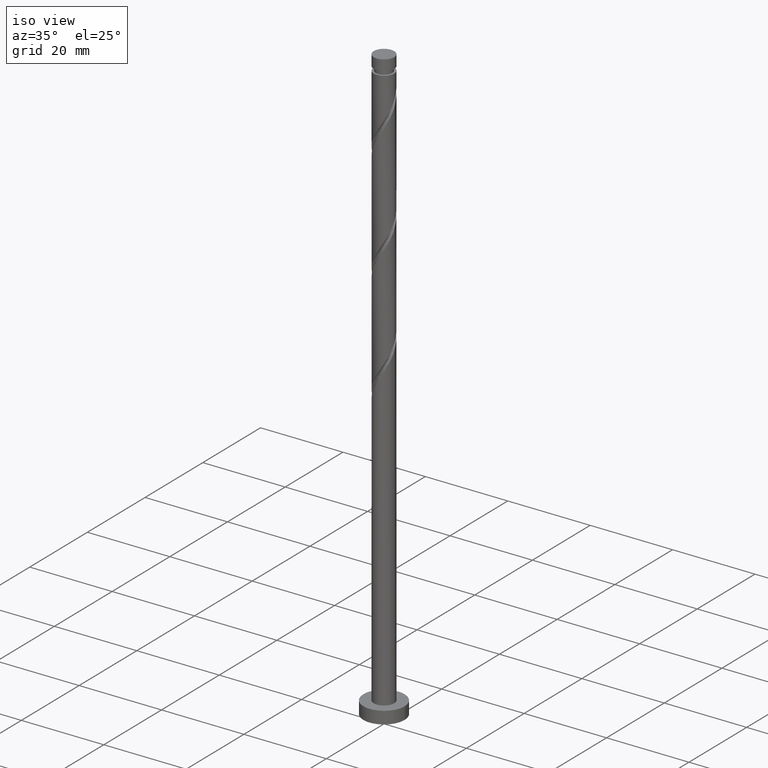
[diagram: clean part render]
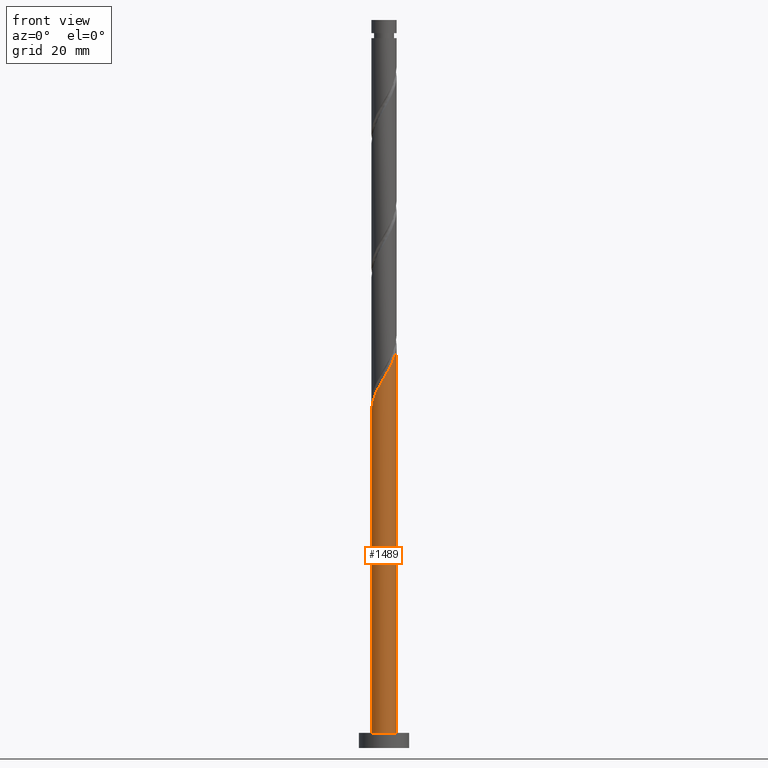
[diagram: tour spotlight — one face highlighted and labeled with its STEP entity id]
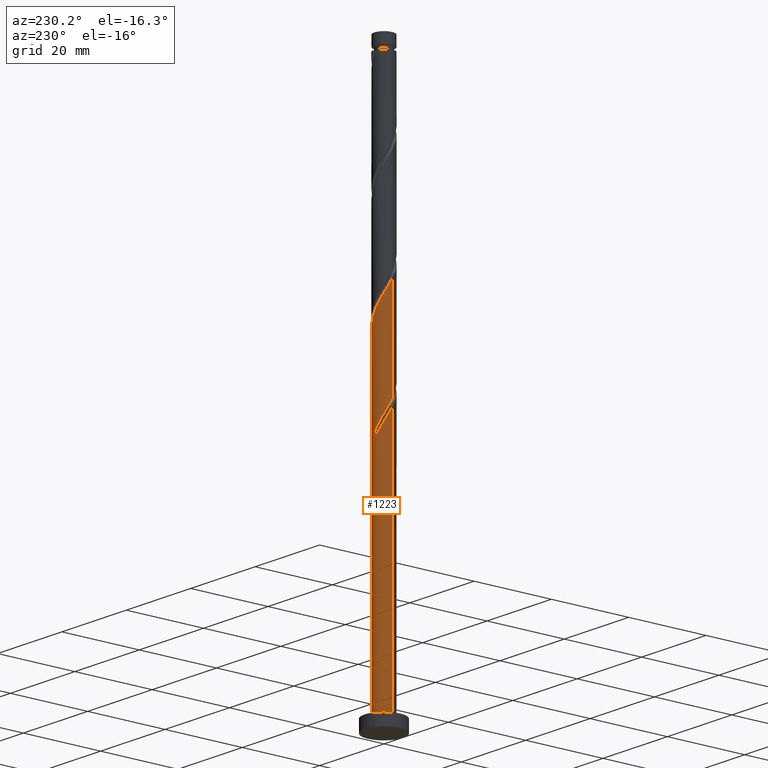
[diagram: tour spotlight — one face highlighted and labeled with its STEP entity id]
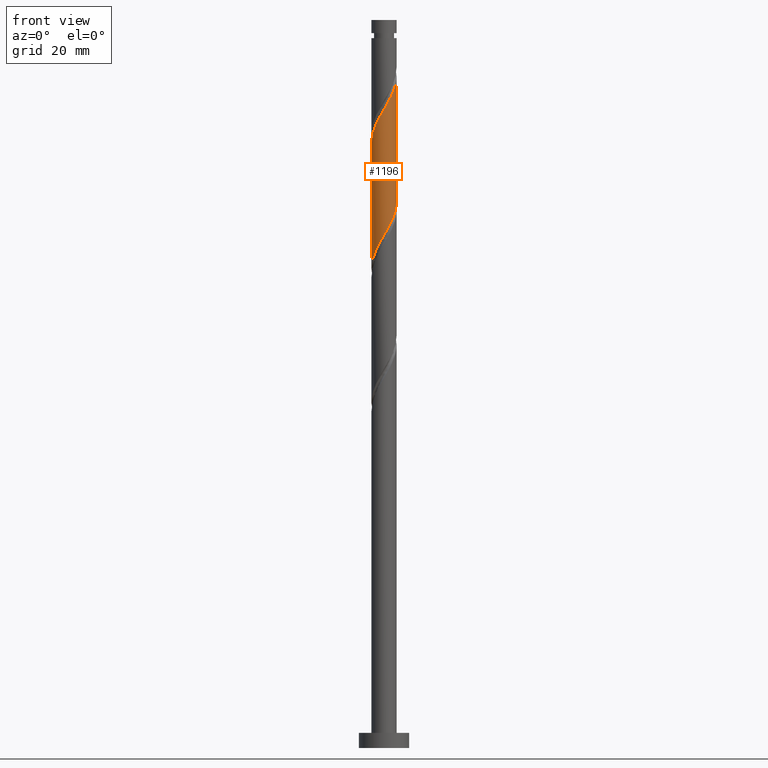
[diagram: tour spotlight — one face highlighted and labeled with its STEP entity id]
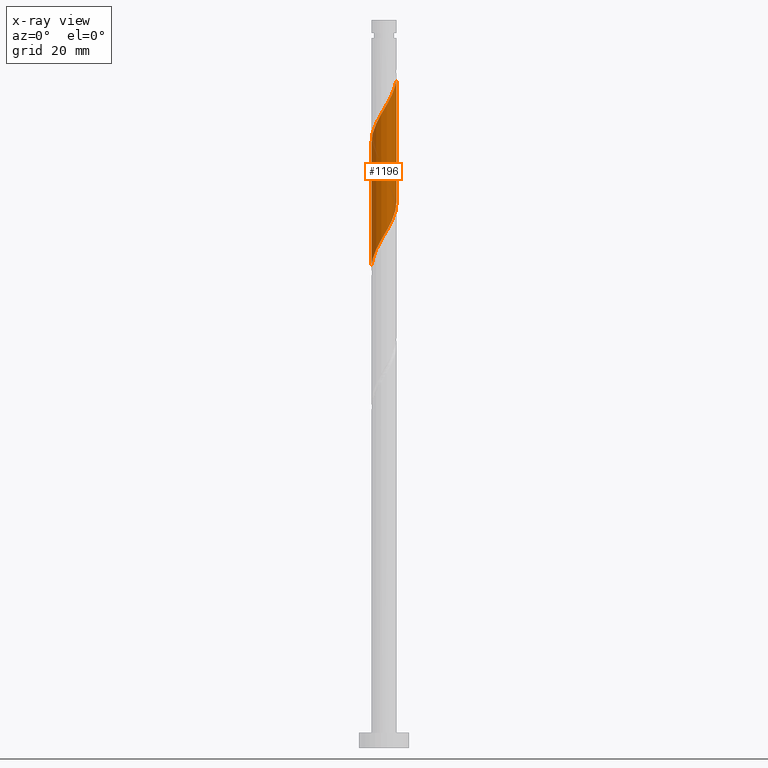
[diagram: x-ray of the same camera — body ghosted, this tour face saturated]
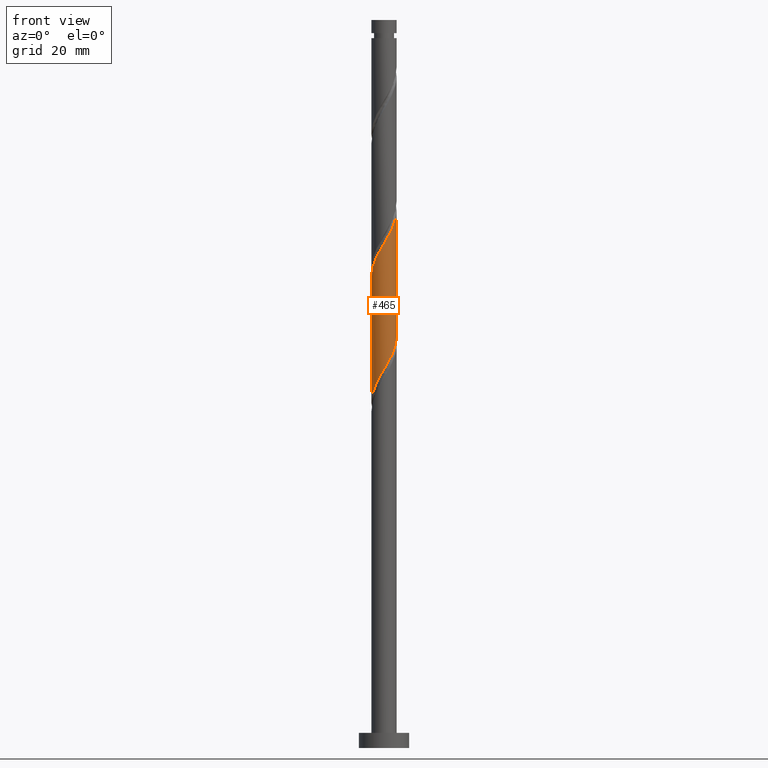
[diagram: tour spotlight — one face highlighted and labeled with its STEP entity id]
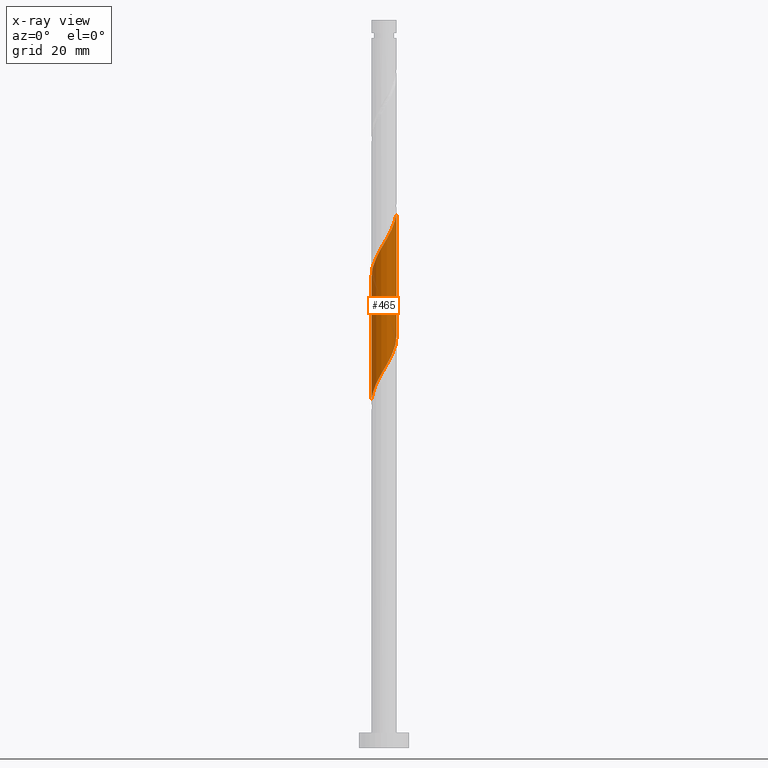
[diagram: x-ray of the same camera — body ghosted, this tour face saturated]
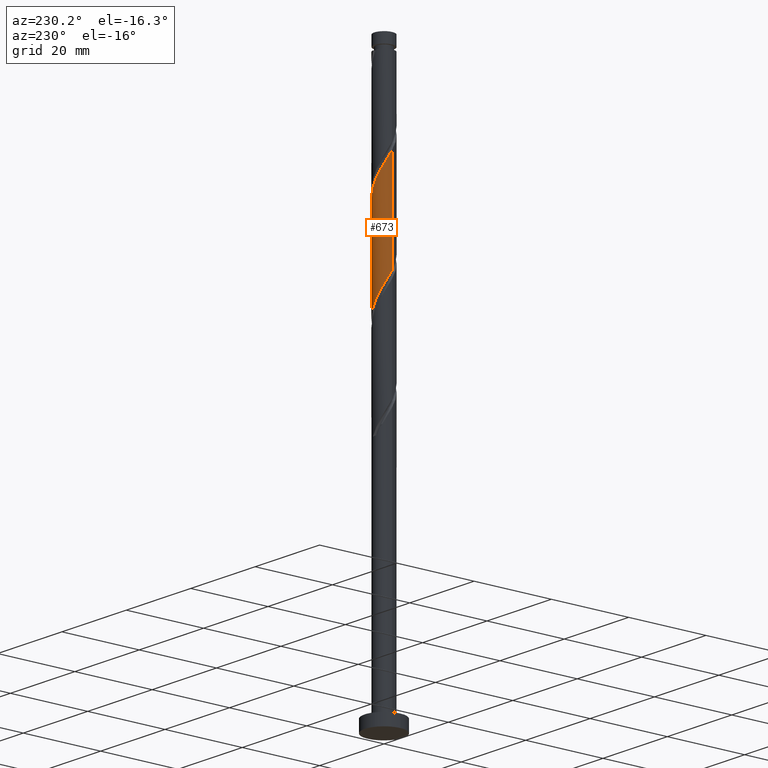
[diagram: tour spotlight — one face highlighted and labeled with its STEP entity id]
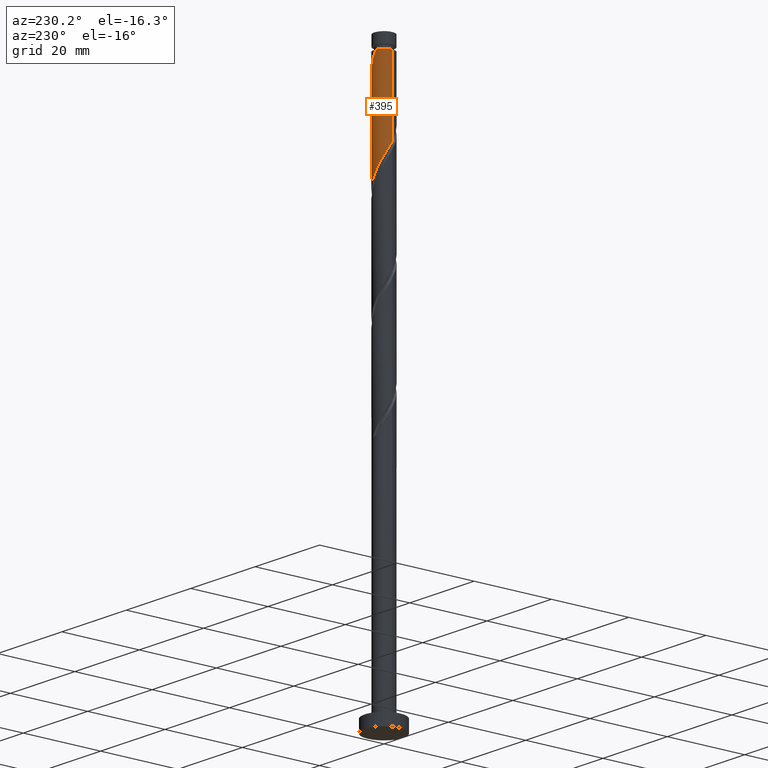
[diagram: tour spotlight — one face highlighted and labeled with its STEP entity id]
A machine part: a face-by-face anatomy tour. The part has 21 B-rep faces; the first image is the clean iso view, then the 6 largest visible faces are spotlighted one at a time (largest first), each with its STEP entity span.

Face 1 — front view, entity #1489. In plain terms, the highlighted cylindrical surface (edge-blend (fillet) strip) has radius 2.5 mm, axis along (-0, -0, -1).
Definition (entity closure, byte-faithful):
#18 =( BOUNDED_CURVE ( )  B_SPLINE_CURVE ( 2, ( #836, #959, #1210, #592, #816, #826, #1330, #177, #1337, #51, #1345, #577, #202, #692, #567, #1086, #1601, #1476, #961, #827, #700, #1593, #1375, #1087, #450 ),
 .UNSPECIFIED., .F., .T. ) 
 B_SPLINE_CURVE_WITH_KNOTS ( ( 3, 2, 2, 2, 2, 2, 2, 2, 2, 2, 2, 2, 3 ),
 ( 0.05452521624175091924, 0.05681818181818176772, 0.06818181818181823228, 0.07954545454545458583, 0.09090909090909093937, 0.1022727272727272929, 0.1136363636363636465, 0.1250000000000000000, 0.1363636363636363535, 0.1477272727272727071, 0.1590909090909090606, 0.1704545454545454142, 0.1795252162417513286 ),
 .UNSPECIFIED. ) 
 CURVE ( )  GEOMETRIC_REPRESENTATION_ITEM ( )  RATIONAL_B_SPLINE_CURVE ( ( 0.9061101570135643435, 0.9072237824201465628, 0.9090909090909243817, 0.8998376744372265090, 0.9090909090909243817, 0.8998376744372265090, 0.9090909090909243817, 0.8998376744372265090, 0.9090909090909243817, 0.8998376744372265090, 0.9090909090909243817, 0.8998376744372265090, 0.9090909090909243817, 0.8998376744372265090, 0.9090909090909243817, 0.8998376744372265090, 0.9090909090909243817, 0.8998376744372265090, 0.9090909090909243817, 0.8998376744372265090, 0.9090909090909243817, 0.8998376744372265090, 0.9090909090909243817, 0.9017048011080039949, 0.9061101570135646766 ) ) 
 REPRESENTATION_ITEM ( '' )  );
#38 = ORIENTED_EDGE ( 'NONE', *, *, #1610, .T. ) ;
#49 = VERTEX_POINT ( 'NONE', #1602 ) ;
#51 = CARTESIAN_POINT ( 'NONE',  ( -1.241060336893712091, -2.199766004962787402, 71.42519635593900773 ) ) ;
#63 = EDGE_CURVE ( 'NONE', #49, #1219, #1346, .T. ) ;
#140 = CYLINDRICAL_SURFACE ( 'NONE', #1518, 2.500000000000000000 ) ;
#171 = DIRECTION ( 'NONE',  ( -0.000000000000000000, -0.000000000000000000, -1.000000000000000000 ) ) ;
#177 = CARTESIAN_POINT ( 'NONE',  ( -1.810534374112179989, -1.761012923450276491, 70.21307514381780379 ) ) ;
#199 = AXIS2_PLACEMENT_3D ( 'NONE', #848, #1237, #581 ) ;
#202 = CARTESIAN_POINT ( 'NONE',  ( -0.2129030368922543714, -2.490917962696096666, 73.24337817412079232 ) ) ;
#203 = CARTESIAN_POINT ( 'NONE',  ( 2.500000000000000000, 3.061616997868383141E-16, 144.7200000000000273 ) ) ;
#246 = VERTEX_POINT ( 'NONE', #1619 ) ;
#315 = DIRECTION ( 'NONE',  ( -0.000000000000000000, -0.000000000000000000, -1.000000000000000000 ) ) ;
#320 = ORIENTED_EDGE ( 'NONE', *, *, #1123, .T. ) ;
#448 = CARTESIAN_POINT ( 'NONE',  ( -2.500000000000000000, 0.000000000000000000, 144.7200000000000273 ) ) ;
#450 = CARTESIAN_POINT ( 'NONE',  ( 2.500000000000004441, 8.974092422097804993E-16, 80.27271157360780762 ) ) ;
#497 = CARTESIAN_POINT ( 'NONE',  ( -2.500000000000000000, 0.000000000000000000, 3.000000000000000000 ) ) ;
#567 = CARTESIAN_POINT ( 'NONE',  ( 0.4974937185533095940, -2.450000000000003730, 74.45549938624205311 ) ) ;
#577 = CARTESIAN_POINT ( 'NONE',  ( -0.5710429720501337680, -2.460307127265379368, 72.63731756806021167 ) ) ;
#581 = DIRECTION ( 'NONE',  ( 1.000000000000000000, 0.000000000000000000, 0.000000000000000000 ) ) ;
#592 = CARTESIAN_POINT ( 'NONE',  ( -2.475193905018192808, -0.5026095591624436532, 67.78883271957539591 ) ) ;
#692 = CARTESIAN_POINT ( 'NONE',  ( 0.1452368982656248031, -2.521528798126814408, 73.84943878018142982 ) ) ;
#700 = CARTESIAN_POINT ( 'NONE',  ( 2.177375558832923996, -1.228428132125369832, 78.09186302260566492 ) ) ;
#786 = VERTEX_POINT ( 'NONE', #497 ) ;
#816 = CARTESIAN_POINT ( 'NONE',  ( -2.354261794510398964, -0.8411013035946930394, 68.39489332563597657 ) ) ;
#819 = VECTOR ( 'NONE', #315, 1000.000000000000000 ) ;
#826 = CARTESIAN_POINT ( 'NONE',  ( -2.233329684002606896, -1.179593048026942759, 69.00095393169658564 ) ) ;
#827 = CARTESIAN_POINT ( 'NONE',  ( 2.000754257700508187, -1.541487475360719062, 77.48580241654508427 ) ) ;
#830 = CARTESIAN_POINT ( 'NONE',  ( 2.500000000000000000, 3.061616997868383141E-16, 3.000000000000000000 ) ) ;
#836 = CARTESIAN_POINT ( 'NONE',  ( -2.500000000000003553, 5.952814639991545523E-15, 66.93937824027446482 ) ) ;
#848 = CARTESIAN_POINT ( 'NONE',  ( 0.000000000000000000, 0.000000000000000000, 3.000000000000000000 ) ) ;
#914 = FACE_OUTER_BOUND ( 'NONE', #1510, .T. ) ;
#927 = VECTOR ( 'NONE', #171, 1000.000000000000000 ) ;
#930 = CIRCLE ( 'NONE', #199, 2.500000000000000000 ) ;
#959 = CARTESIAN_POINT ( 'NONE',  ( -2.500000000000003997, -0.07193881630954343520, 67.06147624499267579 ) ) ;
#961 = CARTESIAN_POINT ( 'NONE',  ( 1.743088351060509300, -1.792105744758710539, 76.87974181048446098 ) ) ;
#982 = ORIENTED_EDGE ( 'NONE', *, *, #1642, .F. ) ;
#1052 = DIRECTION ( 'NONE',  ( -1.000000000000000000, 0.000000000000000000, 0.000000000000000000 ) ) ;
#1063 = DIRECTION ( 'NONE',  ( -0.000000000000000000, -0.000000000000000000, -1.000000000000000000 ) ) ;
#1086 = CARTESIAN_POINT ( 'NONE',  ( 0.8497505388409949401, -2.378471201873193941, 75.06155999230267639 ) ) ;
#1087 = CARTESIAN_POINT ( 'NONE',  ( 2.500000000000003553, -0.2863223184628074791, 79.78675162063647974 ) ) ;
#1123 = EDGE_CURVE ( 'NONE', #786, #1219, #930, .T. ) ;
#1210 = CARTESIAN_POINT ( 'NONE',  ( -2.495863270706177417, -0.1437585960555952114, 67.18277211351474421 ) ) ;
#1219 = VERTEX_POINT ( 'NONE', #830 ) ;
#1237 = DIRECTION ( 'NONE',  ( 0.000000000000000000, 0.000000000000000000, 1.000000000000000000 ) ) ;
#1330 = CARTESIAN_POINT ( 'NONE',  ( -2.021932029057392999, -1.470302985738609403, 69.60701453775716629 ) ) ;
#1337 = CARTESIAN_POINT ( 'NONE',  ( -1.525797355502945596, -1.980389464206531169, 70.81913574987837023 ) ) ;
#1345 = CARTESIAN_POINT ( 'NONE',  ( -0.9060516544719233734, -2.330036566114082497, 72.03125696199958838 ) ) ;
#1346 = LINE ( 'NONE', #203, #927 ) ;
#1375 = CARTESIAN_POINT ( 'NONE',  ( 2.435264748179752470, -0.5652305779706365829, 79.30398423472685465 ) ) ;
#1405 = CARTESIAN_POINT ( 'NONE',  ( 0.000000000000000000, 0.000000000000000000, 144.7200000000000273 ) ) ;
#1436 = ORIENTED_EDGE ( 'NONE', *, *, #63, .F. ) ;
#1476 = CARTESIAN_POINT ( 'NONE',  ( 1.485422444420511079, -2.042724014156701351, 76.27368120442388033 ) ) ;
#1489 = ADVANCED_FACE ( 'NONE', ( #914 ), #140, .T. ) ;
#1510 = EDGE_LOOP ( 'NONE', ( #1436, #982, #38, #320 ) ) ;
#1518 = AXIS2_PLACEMENT_3D ( 'NONE', #1405, #1063, #1052 ) ;
#1592 = LINE ( 'NONE', #448, #819 ) ;
#1593 = CARTESIAN_POINT ( 'NONE',  ( 2.353996859965342026, -0.9153687888900194913, 78.69792362866628821 ) ) ;
#1601 = CARTESIAN_POINT ( 'NONE',  ( 1.167586491630752121, -2.210597608014947202, 75.66762059836324283 ) ) ;
#1602 = CARTESIAN_POINT ( 'NONE',  ( 2.500000000000003997, 8.974092422097804993E-16, 80.27271157360780762 ) ) ;
#1610 = EDGE_CURVE ( 'NONE', #246, #786, #1592, .T. ) ;
#1619 = CARTESIAN_POINT ( 'NONE',  ( -2.500000000000003553, 5.952814639991545523E-15, 66.93937824027446482 ) ) ;
#1642 = EDGE_CURVE ( 'NONE', #246, #49, #18, .T. ) ;

Face 2 — auxiliary view, entity #1223. In plain terms, the highlighted cylindrical surface (edge-blend (fillet) strip) has radius 2.5 mm, axis along (-0, -0, -1).
Definition (entity closure, byte-faithful):
#4 = CARTESIAN_POINT ( 'NONE',  ( 0.000000000000000000, 0.000000000000000000, 61.12216605290871030 ) ) ;
#12 = CARTESIAN_POINT ( 'NONE',  ( -1.167586491630752121, 2.210597608014946758, 62.33428726502990713 ) ) ;
#24 = CARTESIAN_POINT ( 'NONE',  ( 2.500000000000003997, 0.07193881630955609174, 80.39480957832603281 ) ) ;
#33 = CARTESIAN_POINT ( 'NONE',  ( 2.475193905018192808, 0.5026095591624433201, 81.12216605290873872 ) ) ;
#49 = VERTEX_POINT ( 'NONE', #1602 ) ;
#63 = EDGE_CURVE ( 'NONE', #49, #1219, #1346, .T. ) ;
#71 = VERTEX_POINT ( 'NONE', #324 ) ;
#128 = CARTESIAN_POINT ( 'NONE',  ( -2.177375558832924884, 1.228428132125369832, 64.75852968927232212 ) ) ;
#142 = CARTESIAN_POINT ( 'NONE',  ( -2.353996859965342026, 0.9153687888900202685, 65.36459029533294540 ) ) ;
#157 = CARTESIAN_POINT ( 'NONE',  ( -2.000754257700508187, 1.541487475360719062, 90.81913574987838444 ) ) ;
#161 = DIRECTION ( 'NONE',  ( -1.000000000000000000, 0.000000000000000000, 0.000000000000000000 ) ) ;
#171 = DIRECTION ( 'NONE',  ( -0.000000000000000000, -0.000000000000000000, -1.000000000000000000 ) ) ;
#203 = CARTESIAN_POINT ( 'NONE',  ( 2.500000000000000000, 3.061616997868383141E-16, 144.7200000000000273 ) ) ;
#214 = DIRECTION ( 'NONE',  ( -1.000000000000000000, 0.000000000000000000, 0.000000000000000000 ) ) ;
#246 = VERTEX_POINT ( 'NONE', #1619 ) ;
#272 = CARTESIAN_POINT ( 'NONE',  ( -1.743088351060509300, 1.792105744758710539, 63.54640847715112528 ) ) ;
#284 = CARTESIAN_POINT ( 'NONE',  ( -1.485422444420510857, 2.042724014156701351, 89.60701453775718051 ) ) ;
#289 = CARTESIAN_POINT ( 'NONE',  ( -2.500000000000003553, -1.002106987134254874E-15, 93.60604490694117885 ) ) ;
#292 = CARTESIAN_POINT ( 'NONE',  ( -2.500000000000000888, 0.2863223184628203022, 66.45341828730315115 ) ) ;
#294 = CARTESIAN_POINT ( 'NONE',  ( 2.495863270706178305, 0.1437585960555949616, 80.51610544684807280 ) ) ;
#297 = ORIENTED_EDGE ( 'NONE', *, *, #63, .T. ) ;
#302 = CARTESIAN_POINT ( 'NONE',  ( 0.9060516544719221521, 2.330036566114082497, 85.36459029533291698 ) ) ;
#315 = DIRECTION ( 'NONE',  ( -0.000000000000000000, -0.000000000000000000, -1.000000000000000000 ) ) ;
#319 = CARTESIAN_POINT ( 'NONE',  ( -1.241060336893709426, 2.199766004962784294, 64.15246908321172725 ) ) ;
#324 = CARTESIAN_POINT ( 'NONE',  ( 0.4974937185533102602, 2.449999999999999289, 61.12216605290869609 ) ) ;
#332 = ORIENTED_EDGE ( 'NONE', *, *, #357, .F. ) ;
#357 = EDGE_CURVE ( 'NONE', #675, #246, #866, .T. ) ;
#371 = AXIS2_PLACEMENT_3D ( 'NONE', #775, #782, #1162 ) ;
#400 = CARTESIAN_POINT ( 'NONE',  ( 0.5710429720501342121, 2.460307127265379368, 85.97065090139356869 ) ) ;
#407 = ORIENTED_EDGE ( 'NONE', *, *, #494, .F. ) ;
#448 = CARTESIAN_POINT ( 'NONE',  ( -2.500000000000000000, 0.000000000000000000, 144.7200000000000273 ) ) ;
#452 = CARTESIAN_POINT ( 'NONE',  ( -0.9060516544719204868, 2.330036566114080276, 63.54640847715111818 ) ) ;
#458 = CYLINDRICAL_SURFACE ( 'NONE', #1075, 2.500000000000000000 ) ;
#494 = EDGE_CURVE ( 'NONE', #970, #1117, #560, .T. ) ;
#497 = CARTESIAN_POINT ( 'NONE',  ( -2.500000000000000000, 0.000000000000000000, 3.000000000000000000 ) ) ;
#498 = ORIENTED_EDGE ( 'NONE', *, *, #1479, .T. ) ;
#531 = CARTESIAN_POINT ( 'NONE',  ( 2.354261794510399408, 0.8411013035946928174, 81.72822665896930516 ) ) ;
#539 = ORIENTED_EDGE ( 'NONE', *, *, #1456, .T. ) ;
#540 = CARTESIAN_POINT ( 'NONE',  ( -0.1452368982656244700, 2.521528798126814408, 87.18277211351478684 ) ) ;
#550 = CARTESIAN_POINT ( 'NONE',  ( -2.500000000000003553, 0.2863223184628093110, 93.12008495396983676 ) ) ;
#556 = CARTESIAN_POINT ( 'NONE',  ( 2.021932029057393443, 1.470302985738609181, 82.94034787109049489 ) ) ;
#560 = LINE ( 'NONE', #1572, #818 ) ;
#572 = CARTESIAN_POINT ( 'NONE',  ( -2.499999999999999556, 8.674956008027945541E-15, 68.63828719887625596 ) ) ;
#595 = CARTESIAN_POINT ( 'NONE',  ( -2.233329684002602900, 1.179593048026941648, 66.57671150745414934 ) ) ;
#670 = CARTESIAN_POINT ( 'NONE',  ( -2.435264748179752470, 0.5652305779706365829, 92.63731756806018325 ) ) ;
#675 = VERTEX_POINT ( 'NONE', #1624 ) ;
#676 = CARTESIAN_POINT ( 'NONE',  ( -2.177375558832924884, 1.228428132125369832, 91.42519635593897931 ) ) ;
#686 = CIRCLE ( 'NONE', #1252, 2.500000000000000000 ) ;
#696 = CARTESIAN_POINT ( 'NONE',  ( -2.499999999999999556, 8.674956008027945541E-15, 68.63828719887625596 ) ) ;
#715 = CARTESIAN_POINT ( 'NONE',  ( -0.5710429720501323247, 2.460307127265375815, 62.94034787109051621 ) ) ;
#728 = CARTESIAN_POINT ( 'NONE',  ( 0.4974937185533102602, 2.449999999999999289, 61.12216605290869609 ) ) ;
#775 = CARTESIAN_POINT ( 'NONE',  ( 0.000000000000000000, 0.000000000000000000, 3.000000000000000000 ) ) ;
#782 = DIRECTION ( 'NONE',  ( 0.000000000000000000, 0.000000000000000000, 1.000000000000000000 ) ) ;
#786 = VERTEX_POINT ( 'NONE', #497 ) ;
#793 = CARTESIAN_POINT ( 'NONE',  ( -0.8497505388409953841, 2.378471201873193497, 61.72822665896931227 ) ) ;
#798 = CARTESIAN_POINT ( 'NONE',  ( 0.2129030368922547323, 2.490917962696096666, 86.57671150745416355 ) ) ;
#818 = VECTOR ( 'NONE', #1188, 1000.000000000000000 ) ;
#819 = VECTOR ( 'NONE', #315, 1000.000000000000000 ) ;
#830 = CARTESIAN_POINT ( 'NONE',  ( 2.500000000000000000, 3.061616997868383141E-16, 3.000000000000000000 ) ) ;
#866 =( BOUNDED_CURVE ( )  B_SPLINE_CURVE ( 2, ( #1540, #793, #12, #1415, #272, #928, #128, #142, #1054, #292, #1556 ),
 .UNSPECIFIED., .F., .T. ) 
 B_SPLINE_CURVE_WITH_KNOTS ( ( 3, 2, 2, 2, 2, 3 ),
 ( 0.000000000000000000, 0.01136363636363635354, 0.02272727272727270709, 0.03409090909090906063, 0.04545454545454541417, 0.05452521624175091924 ),
 .UNSPECIFIED. ) 
 CURVE ( )  GEOMETRIC_REPRESENTATION_ITEM ( )  RATIONAL_B_SPLINE_CURVE ( ( 0.9090909090909243817, 0.8998376744372265090, 0.9090909090909243817, 0.8998376744372265090, 0.9090909090909243817, 0.8998376744372265090, 0.9090909090909243817, 0.8998376744372265090, 0.9090909090909243817, 0.9017048011080043279, 0.9061101570135643435 ) ) 
 REPRESENTATION_ITEM ( '' )  );
#903 = CARTESIAN_POINT ( 'NONE',  ( 1.525797355502945374, 1.980389464206532057, 84.15246908321172725 ) ) ;
#920 = CARTESIAN_POINT ( 'NONE',  ( -0.4974937185533094275, 2.450000000000003730, 87.78883271957536749 ) ) ;
#927 = VECTOR ( 'NONE', #171, 1000.000000000000000 ) ;
#928 = CARTESIAN_POINT ( 'NONE',  ( -2.000754257700508187, 1.541487475360719062, 64.15246908321174146 ) ) ;
#931 = CARTESIAN_POINT ( 'NONE',  ( -2.353996859965342026, 0.9153687888900202685, 92.03125696199961681 ) ) ;
#940 = EDGE_CURVE ( 'NONE', #49, #970, #1626, .T. ) ;
#963 = CARTESIAN_POINT ( 'NONE',  ( -1.810534374112177103, 1.761012923450274492, 65.36459029533294540 ) ) ;
#969 = CARTESIAN_POINT ( 'NONE',  ( 0.000000000000000000, 0.000000000000000000, 144.7200000000000273 ) ) ;
#970 = VERTEX_POINT ( 'NONE', #289 ) ;
#1048 = CARTESIAN_POINT ( 'NONE',  ( 2.233329684002607340, 1.179593048026942315, 82.33428726502992845 ) ) ;
#1054 = CARTESIAN_POINT ( 'NONE',  ( -2.435264748179752470, 0.5652305779706365829, 65.97065090139354027 ) ) ;
#1058 = CARTESIAN_POINT ( 'NONE',  ( 2.500000000000004441, 8.974092422097804993E-16, 80.27271157360780762 ) ) ;
#1075 = AXIS2_PLACEMENT_3D ( 'NONE', #969, #1225, #214 ) ;
#1102 = CARTESIAN_POINT ( 'NONE',  ( -2.475193905018187035, 0.5026095591624435421, 67.78883271957538170 ) ) ;
#1108 = CARTESIAN_POINT ( 'NONE',  ( -0.2129030368922536498, 2.490917962696093113, 62.33428726502992134 ) ) ;
#1117 = VERTEX_POINT ( 'NONE', #696 ) ;
#1142 = EDGE_CURVE ( 'NONE', #1117, #71, #1443, .T. ) ;
#1153 = CIRCLE ( 'NONE', #371, 2.500000000000000000 ) ;
#1162 = DIRECTION ( 'NONE',  ( 1.000000000000000000, 0.000000000000000000, 0.000000000000000000 ) ) ;
#1188 = DIRECTION ( 'NONE',  ( -0.000000000000000000, -0.000000000000000000, -1.000000000000000000 ) ) ;
#1202 = ORIENTED_EDGE ( 'NONE', *, *, #1610, .F. ) ;
#1219 = VERTEX_POINT ( 'NONE', #830 ) ;
#1223 = ADVANCED_FACE ( 'NONE', ( #1342 ), #458, .T. ) ;
#1225 = DIRECTION ( 'NONE',  ( -0.000000000000000000, -0.000000000000000000, -1.000000000000000000 ) ) ;
#1243 = CARTESIAN_POINT ( 'NONE',  ( 0.1452368982656250529, 2.521528798126809967, 61.72822665896931227 ) ) ;
#1252 = AXIS2_PLACEMENT_3D ( 'NONE', #4, #1292, #161 ) ;
#1292 = DIRECTION ( 'NONE',  ( 0.000000000000000000, -0.000000000000000000, -1.000000000000000000 ) ) ;
#1305 = CARTESIAN_POINT ( 'NONE',  ( -1.743088351060509300, 1.792105744758710539, 90.21307514381778958 ) ) ;
#1334 = CARTESIAN_POINT ( 'NONE',  ( -2.354261794510394967, 0.8411013035946922622, 67.18277211351474421 ) ) ;
#1342 = FACE_OUTER_BOUND ( 'NONE', #1501, .T. ) ;
#1346 = LINE ( 'NONE', #203, #927 ) ;
#1348 = CARTESIAN_POINT ( 'NONE',  ( -1.525797355502942709, 1.980389464206528949, 64.75852968927232212 ) ) ;
#1357 = CARTESIAN_POINT ( 'NONE',  ( -2.499999999999999556, 0.07193881630955684114, 68.51618919415804498 ) ) ;
#1388 = ORIENTED_EDGE ( 'NONE', *, *, #1142, .F. ) ;
#1409 = CARTESIAN_POINT ( 'NONE',  ( -1.167586491630752121, 2.210597608014946758, 89.00095393169657143 ) ) ;
#1415 = CARTESIAN_POINT ( 'NONE',  ( -1.485422444420510857, 2.042724014156701351, 62.94034787109051621 ) ) ;
#1425 = CARTESIAN_POINT ( 'NONE',  ( -0.8497505388409953841, 2.378471201873193497, 88.39489332563597657 ) ) ;
#1437 = CARTESIAN_POINT ( 'NONE',  ( 1.241060336893711202, 2.199766004962787846, 84.75852968927235054 ) ) ;
#1443 =( BOUNDED_CURVE ( )  B_SPLINE_CURVE ( 2, ( #572, #1357, #1605, #1102, #1334, #595, #1463, #963, #1348, #319, #452, #715, #1108, #1243, #728 ),
 .UNSPECIFIED., .F., .T. ) 
 B_SPLINE_CURVE_WITH_KNOTS ( ( 3, 2, 2, 2, 2, 2, 2, 3 ),
 ( 0.9295252162417513286, 0.9318181818181817677, 0.9431818181818182323, 0.9545454545454545858, 0.9659090909090909394, 0.9772727272727272929, 0.9886363636363636465, 1.000000000000000000 ),
 .UNSPECIFIED. ) 
 CURVE ( )  GEOMETRIC_REPRESENTATION_ITEM ( )  RATIONAL_B_SPLINE_CURVE ( ( 0.9061101570135576821, 0.9072237824201399015, 0.9090909090909173873, 0.8998376744372197367, 0.9090909090909173873, 0.8998376744372197367, 0.9090909090909173873, 0.8998376744372197367, 0.9090909090909173873, 0.8998376744372197367, 0.9090909090909173873, 0.8998376744372197367, 0.9090909090909173873, 0.8998376744372197367, 0.9090909090909173873 ) ) 
 REPRESENTATION_ITEM ( '' )  );
#1456 = EDGE_CURVE ( 'NONE', #1219, #786, #1153, .T. ) ;
#1463 = CARTESIAN_POINT ( 'NONE',  ( -2.021932029057389446, 1.470302985738607404, 65.97065090139355448 ) ) ;
#1479 = EDGE_CURVE ( 'NONE', #675, #71, #686, .T. ) ;
#1501 = EDGE_LOOP ( 'NONE', ( #1647, #297, #539, #1202, #332, #498, #1388, #407 ) ) ;
#1540 = CARTESIAN_POINT ( 'NONE',  ( -0.4974937185533094275, 2.450000000000003730, 61.12216605290869609 ) ) ;
#1549 = CARTESIAN_POINT ( 'NONE',  ( 1.810534374112181100, 1.761012923450276046, 83.54640847715113239 ) ) ;
#1556 = CARTESIAN_POINT ( 'NONE',  ( -2.500000000000003553, 5.952814639991545523E-15, 66.93937824027446482 ) ) ;
#1561 = CARTESIAN_POINT ( 'NONE',  ( -2.500000000000003553, -1.002106987134254874E-15, 93.60604490694117885 ) ) ;
#1572 = CARTESIAN_POINT ( 'NONE',  ( -2.500000000000000000, 0.000000000000000000, 144.7200000000000273 ) ) ;
#1592 = LINE ( 'NONE', #448, #819 ) ;
#1602 = CARTESIAN_POINT ( 'NONE',  ( 2.500000000000003997, 8.974092422097804993E-16, 80.27271157360780762 ) ) ;
#1605 = CARTESIAN_POINT ( 'NONE',  ( -2.495863270706174752, 0.1437585960555956555, 68.39489332563597657 ) ) ;
#1610 = EDGE_CURVE ( 'NONE', #246, #786, #1592, .T. ) ;
#1619 = CARTESIAN_POINT ( 'NONE',  ( -2.500000000000003553, 5.952814639991545523E-15, 66.93937824027446482 ) ) ;
#1624 = CARTESIAN_POINT ( 'NONE',  ( -0.4974937185533094275, 2.450000000000003730, 61.12216605290869609 ) ) ;
#1626 =( BOUNDED_CURVE ( )  B_SPLINE_CURVE ( 2, ( #1058, #24, #294, #33, #531, #1048, #556, #1549, #903, #1437, #302, #400, #798, #540, #920, #1425, #1409, #284, #1305, #157, #676, #931, #670, #550, #1561 ),
 .UNSPECIFIED., .F., .T. ) 
 B_SPLINE_CURVE_WITH_KNOTS ( ( 3, 2, 2, 2, 2, 2, 2, 2, 2, 2, 2, 2, 3 ),
 ( 0.1795252162417513286, 0.1818181818181817677, 0.1931818181818182323, 0.2045454545454545858, 0.2159090909090909394, 0.2272727272727272929, 0.2386363636363636465, 0.2500000000000000000, 0.2613636363636363535, 0.2727272727272727071, 0.2840909090909090606, 0.2954545454545454142, 0.3045252162417512731 ),
 .UNSPECIFIED. ) 
 CURVE ( )  GEOMETRIC_REPRESENTATION_ITEM ( )  RATIONAL_B_SPLINE_CURVE ( ( 0.9061101570135646766, 0.9072237824201467848, 0.9090909090909243817, 0.8998376744372265090, 0.9090909090909243817, 0.8998376744372265090, 0.9090909090909243817, 0.8998376744372265090, 0.9090909090909243817, 0.8998376744372265090, 0.9090909090909243817, 0.8998376744372265090, 0.9090909090909243817, 0.8998376744372265090, 0.9090909090909243817, 0.8998376744372265090, 0.9090909090909243817, 0.8998376744372265090, 0.9090909090909243817, 0.8998376744372265090, 0.9090909090909243817, 0.8998376744372265090, 0.9090909090909243817, 0.9017048011080039949, 0.9061101570135645655 ) ) 
 REPRESENTATION_ITEM ( '' )  );
#1647 = ORIENTED_EDGE ( 'NONE', *, *, #940, .F. ) ;

Face 3 — front view, entity #1196. An x-ray twin of the same camera follows (body ghosted, this face saturated) — the face is partly hidden behind the body. In plain terms, the highlighted cylindrical surface (edge-blend (fillet) strip) has radius 2.5 mm, axis along (-0, -0, -1).
Definition (entity closure, byte-faithful):
#28 = CARTESIAN_POINT ( 'NONE',  ( -1.241060336893712091, -2.199766004962787402, 124.7585296892723505 ) ) ;
#41 = CARTESIAN_POINT ( 'NONE',  ( 2.499999999999998668, -0.07193881630956419637, 108.5161891941580308 ) ) ;
#42 = CARTESIAN_POINT ( 'NONE',  ( 2.435264748179752470, -0.5652305779706365829, 132.6373175680601832 ) ) ;
#55 = CARTESIAN_POINT ( 'NONE',  ( 1.241060336893709204, -2.199766004962784738, 104.1524690832117557 ) ) ;
#62 = CARTESIAN_POINT ( 'NONE',  ( -1.167586491630751455, -2.210597608014943649, 99.91004484078749215 ) ) ;
#78 = CARTESIAN_POINT ( 'NONE',  ( -2.000754257700505523, -1.541487475360716175, 98.09186302260567913 ) ) ;
#167 = CARTESIAN_POINT ( 'NONE',  ( 2.353996859965342026, -0.9153687888900194913, 132.0312569619996168 ) ) ;
#173 = CARTESIAN_POINT ( 'NONE',  ( 1.525797355502942709, -1.980389464206528949, 104.7585296892723221 ) ) ;
#178 = DIRECTION ( 'NONE',  ( -1.000000000000000000, 0.000000000000000000, 0.000000000000000000 ) ) ;
#206 = CARTESIAN_POINT ( 'NONE',  ( -1.485422444420508858, -2.042724014156698242, 99.30398423472686886 ) ) ;
#207 = ORIENTED_EDGE ( 'NONE', *, *, #547, .F. ) ;
#232 = VECTOR ( 'NONE', #972, 1000.000000000000000 ) ;
#233 = ORIENTED_EDGE ( 'NONE', *, *, #1555, .F. ) ;
#304 = CARTESIAN_POINT ( 'NONE',  ( 1.810534374112177325, -1.761012923450274048, 105.3645902953329454 ) ) ;
#310 = CARTESIAN_POINT ( 'NONE',  ( -1.743088351060507302, -1.792105744758706987, 98.69792362866627400 ) ) ;
#325 = CARTESIAN_POINT ( 'NONE',  ( -0.1452368982656256635, -2.521528798126809967, 101.7282266589693194 ) ) ;
#423 = CARTESIAN_POINT ( 'NONE',  ( 2.500000000000003997, 8.974092422097804993E-16, 133.6060449069411789 ) ) ;
#435 = CARTESIAN_POINT ( 'NONE',  ( -2.233329684002606896, -1.179593048026942759, 122.3342872650299427 ) ) ;
#442 = CARTESIAN_POINT ( 'NONE',  ( 0.5710429720501327688, -2.460307127265375815, 102.9403478710905233 ) ) ;
#467 = FACE_OUTER_BOUND ( 'NONE', #943, .T. ) ;
#468 = VERTEX_POINT ( 'NONE', #1326 ) ;
#483 = CARTESIAN_POINT ( 'NONE',  ( 2.500000000000004441, 8.974092422097804993E-16, 133.6060449069411789 ) ) ;
#534 = CARTESIAN_POINT ( 'NONE',  ( 2.475193905018187035, -0.5026095591624438752, 107.7888327195753533 ) ) ;
#543 = CARTESIAN_POINT ( 'NONE',  ( 0.8497505388409949401, -2.378471201873193941, 128.3948933256359624 ) ) ;
#547 = EDGE_CURVE ( 'NONE', #468, #998, #1042, .T. ) ;
#553 = CARTESIAN_POINT ( 'NONE',  ( -2.500000000000003553, 5.952814639991545523E-15, 120.2727115736078076 ) ) ;
#565 = CARTESIAN_POINT ( 'NONE',  ( -0.2129030368922543714, -2.490917962696096666, 126.5767115074541493 ) ) ;
#587 = VERTEX_POINT ( 'NONE', #1663 ) ;
#624 = EDGE_CURVE ( 'NONE', #468, #587, #1118, .T. ) ;
#634 = AXIS2_PLACEMENT_3D ( 'NONE', #1091, #1471, #178 ) ;
#664 = CARTESIAN_POINT ( 'NONE',  ( 0.1452368982656248031, -2.521528798126814408, 127.1827721135147584 ) ) ;
#680 = CARTESIAN_POINT ( 'NONE',  ( 2.177375558832923996, -1.228428132125369832, 131.4251963559389935 ) ) ;
#688 = CARTESIAN_POINT ( 'NONE',  ( -2.500000000000003997, -0.07193881630955348272, 120.3948095783260754 ) ) ;
#704 = CYLINDRICAL_SURFACE ( 'NONE', #634, 2.500000000000000000 ) ;
#718 = CARTESIAN_POINT ( 'NONE',  ( 2.500000000000000000, 3.061616997868383141E-16, 144.7200000000000273 ) ) ;
#721 = CARTESIAN_POINT ( 'NONE',  ( -2.177375558832921776, -1.228428132125366501, 97.48580241654505585 ) ) ;
#729 = VERTEX_POINT ( 'NONE', #842 ) ;
#810 = CARTESIAN_POINT ( 'NONE',  ( 2.495863270706173864, -0.1437585960555959608, 108.3948933256359766 ) ) ;
#812 = CARTESIAN_POINT ( 'NONE',  ( -2.021932029057392999, -1.470302985738609403, 122.9403478710904949 ) ) ;
#822 = CARTESIAN_POINT ( 'NONE',  ( -2.495863270706177417, -0.1437585960555952114, 120.5161054468480870 ) ) ;
#841 = CARTESIAN_POINT ( 'NONE',  ( 0.9060516544719204868, -2.330036566114080276, 103.5464084771511466 ) ) ;
#842 = CARTESIAN_POINT ( 'NONE',  ( 2.499999999999999556, -2.191174233062231120E-15, 108.6382871988762417 ) ) ;
#923 = CARTESIAN_POINT ( 'NONE',  ( 1.743088351060509300, -1.792105744758710539, 130.2130751438177754 ) ) ;
#934 = CARTESIAN_POINT ( 'NONE',  ( 0.4974937185533095940, -2.450000000000003730, 127.7888327195753675 ) ) ;
#936 =( BOUNDED_CURVE ( )  B_SPLINE_CURVE ( 2, ( #1552, #41, #810, #534, #1050, #1324, #1582, #304, #173, #55, #841, #442, #946, #325, #1233, #1453, #62, #206, #310, #78, #721, #953, #1363, #1490, #1596 ),
 .UNSPECIFIED., .F., .T. ) 
 B_SPLINE_CURVE_WITH_KNOTS ( ( 3, 2, 2, 2, 2, 2, 2, 2, 2, 2, 2, 2, 3 ),
 ( 0.5545252162417515507, 0.5568181818181817677, 0.5681818181818182323, 0.5795454545454545858, 0.5909090909090909394, 0.6022727272727272929, 0.6136363636363636465, 0.6250000000000000000, 0.6363636363636363535, 0.6477272727272727071, 0.6590909090909090606, 0.6704545454545454142, 0.6795252162417513286 ),
 .UNSPECIFIED. ) 
 CURVE ( )  GEOMETRIC_REPRESENTATION_ITEM ( )  RATIONAL_B_SPLINE_CURVE ( ( 0.9061101570135580152, 0.9072237824201401235, 0.9090909090909173873, 0.8998376744372197367, 0.9090909090909173873, 0.8998376744372197367, 0.9090909090909173873, 0.8998376744372197367, 0.9090909090909173873, 0.8998376744372197367, 0.9090909090909173873, 0.8998376744372197367, 0.9090909090909173873, 0.8998376744372197367, 0.9090909090909173873, 0.8998376744372197367, 0.9090909090909173873, 0.8998376744372197367, 0.9090909090909173873, 0.8998376744372197367, 0.9090909090909173873, 0.8998376744372197367, 0.9090909090909173873, 0.9017048011079972225, 0.9061101570135576821 ) ) 
 REPRESENTATION_ITEM ( '' )  );
#943 = EDGE_LOOP ( 'NONE', ( #233, #207, #1037, #1254 ) ) ;
#946 = CARTESIAN_POINT ( 'NONE',  ( 0.2129030368922529837, -2.490917962696093113, 102.3342872650299142 ) ) ;
#947 = CARTESIAN_POINT ( 'NONE',  ( 2.500000000000006661, -0.2863223184627964324, 133.1200849539698652 ) ) ;
#953 = CARTESIAN_POINT ( 'NONE',  ( -2.353996859965339805, -0.9153687888900179370, 96.87974181048446098 ) ) ;
#972 = DIRECTION ( 'NONE',  ( -0.000000000000000000, -0.000000000000000000, -1.000000000000000000 ) ) ;
#998 = VERTEX_POINT ( 'NONE', #423 ) ;
#1037 = ORIENTED_EDGE ( 'NONE', *, *, #624, .T. ) ;
#1042 =( BOUNDED_CURVE ( )  B_SPLINE_CURVE ( 2, ( #553, #688, #822, #1589, #1465, #435, #812, #1079, #1062, #28, #1209, #1297, #565, #664, #934, #543, #1562, #1316, #923, #1084, #680, #167, #42, #947, #483 ),
 .UNSPECIFIED., .F., .T. ) 
 B_SPLINE_CURVE_WITH_KNOTS ( ( 3, 2, 2, 2, 2, 2, 2, 2, 2, 2, 2, 2, 3 ),
 ( 0.5545252162417513286, 0.5568181818181818787, 0.5681818181818181213, 0.5795454545454545858, 0.5909090909090908283, 0.6022727272727272929, 0.6136363636363636465, 0.6250000000000000000, 0.6363636363636363535, 0.6477272727272727071, 0.6590909090909091717, 0.6704545454545454142, 0.6795252162417517727 ),
 .UNSPECIFIED. ) 
 CURVE ( )  GEOMETRIC_REPRESENTATION_ITEM ( )  RATIONAL_B_SPLINE_CURVE ( ( 0.9061101570135645655, 0.9072237824201467848, 0.9090909090909243817, 0.8998376744372265090, 0.9090909090909243817, 0.8998376744372265090, 0.9090909090909243817, 0.8998376744372265090, 0.9090909090909243817, 0.8998376744372265090, 0.9090909090909243817, 0.8998376744372265090, 0.9090909090909243817, 0.8998376744372265090, 0.9090909090909243817, 0.8998376744372265090, 0.9090909090909243817, 0.8998376744372265090, 0.9090909090909243817, 0.8998376744372265090, 0.9090909090909243817, 0.8998376744372265090, 0.9090909090909243817, 0.9017048011080036618, 0.9061101570135651206 ) ) 
 REPRESENTATION_ITEM ( '' )  );
#1050 = CARTESIAN_POINT ( 'NONE',  ( 2.354261794510394967, -0.8411013035946927063, 107.1827721135147726 ) ) ;
#1062 = CARTESIAN_POINT ( 'NONE',  ( -1.525797355502945596, -1.980389464206531169, 124.1524690832117130 ) ) ;
#1076 = EDGE_CURVE ( 'NONE', #729, #587, #936, .T. ) ;
#1079 = CARTESIAN_POINT ( 'NONE',  ( -1.810534374112179989, -1.761012923450276491, 123.5464084771511324 ) ) ;
#1084 = CARTESIAN_POINT ( 'NONE',  ( 2.000754257700508187, -1.541487475360719062, 130.8191357498783987 ) ) ;
#1091 = CARTESIAN_POINT ( 'NONE',  ( 0.000000000000000000, 0.000000000000000000, 144.7200000000000273 ) ) ;
#1107 = LINE ( 'NONE', #718, #1458 ) ;
#1118 = LINE ( 'NONE', #1607, #232 ) ;
#1196 = ADVANCED_FACE ( 'NONE', ( #467 ), #704, .T. ) ;
#1209 = CARTESIAN_POINT ( 'NONE',  ( -0.9060516544719233734, -2.330036566114082497, 125.3645902953328886 ) ) ;
#1233 = CARTESIAN_POINT ( 'NONE',  ( -0.4974937185533099271, -2.449999999999998845, 101.1221660529086819 ) ) ;
#1254 = ORIENTED_EDGE ( 'NONE', *, *, #1076, .F. ) ;
#1297 = CARTESIAN_POINT ( 'NONE',  ( -0.5710429720501337680, -2.460307127265379368, 125.9706509013935261 ) ) ;
#1316 = CARTESIAN_POINT ( 'NONE',  ( 1.485422444420511079, -2.042724014156701351, 129.6070145377571805 ) ) ;
#1324 = CARTESIAN_POINT ( 'NONE',  ( 2.233329684002602900, -1.179593048026941426, 106.5767115074541636 ) ) ;
#1326 = CARTESIAN_POINT ( 'NONE',  ( -2.500000000000003553, 5.952814639991545523E-15, 120.2727115736078076 ) ) ;
#1363 = CARTESIAN_POINT ( 'NONE',  ( -2.435264748179749361, -0.5652305779706352507, 96.27368120442385191 ) ) ;
#1453 = CARTESIAN_POINT ( 'NONE',  ( -0.8497505388409941629, -2.378471201873189500, 100.5161054468481154 ) ) ;
#1458 = VECTOR ( 'NONE', #1618, 1000.000000000000000 ) ;
#1465 = CARTESIAN_POINT ( 'NONE',  ( -2.354261794510398964, -0.8411013035946930394, 121.7282266589693052 ) ) ;
#1471 = DIRECTION ( 'NONE',  ( -0.000000000000000000, -0.000000000000000000, -1.000000000000000000 ) ) ;
#1490 = CARTESIAN_POINT ( 'NONE',  ( -2.500000000000000000, -0.2863223184628064244, 95.79091381851424103 ) ) ;
#1552 = CARTESIAN_POINT ( 'NONE',  ( 2.500000000000000000, -2.191174233062231120E-15, 108.6382871988762417 ) ) ;
#1555 = EDGE_CURVE ( 'NONE', #998, #729, #1107, .T. ) ;
#1562 = CARTESIAN_POINT ( 'NONE',  ( 1.167586491630752121, -2.210597608014947202, 129.0009539316965856 ) ) ;
#1582 = CARTESIAN_POINT ( 'NONE',  ( 2.021932029057389446, -1.470302985738607404, 105.9706509013935403 ) ) ;
#1589 = CARTESIAN_POINT ( 'NONE',  ( -2.475193905018192808, -0.5026095591624436532, 121.1221660529087245 ) ) ;
#1596 = CARTESIAN_POINT ( 'NONE',  ( -2.499999999999999556, 1.697599149846847950E-15, 95.30495386554294157 ) ) ;
#1607 = CARTESIAN_POINT ( 'NONE',  ( -2.500000000000000000, 0.000000000000000000, 144.7200000000000273 ) ) ;
#1618 = DIRECTION ( 'NONE',  ( -0.000000000000000000, -0.000000000000000000, -1.000000000000000000 ) ) ;
#1663 = CARTESIAN_POINT ( 'NONE',  ( -2.499999999999999556, 1.697599149846847950E-15, 95.30495386554294157 ) ) ;

Face 4 — front view, entity #465. An x-ray twin of the same camera follows (body ghosted, this face saturated) — the face is partly hidden behind the body. In plain terms, the highlighted cylindrical surface (edge-blend (fillet) strip) has radius 2.5 mm, axis along (-0, -0, -1).
Definition (entity closure, byte-faithful):
#52 = CARTESIAN_POINT ( 'NONE',  ( 2.021932029057389446, -1.470302985738607404, 79.30398423472685465 ) ) ;
#56 = LINE ( 'NONE', #955, #309 ) ;
#77 = CARTESIAN_POINT ( 'NONE',  ( -2.500000000000000000, -0.2863223184628064244, 69.12424715184755541 ) ) ;
#86 = CARTESIAN_POINT ( 'NONE',  ( -0.5710429720501337680, -2.460307127265379368, 99.30398423472689728 ) ) ;
#98 = VERTEX_POINT ( 'NONE', #694 ) ;
#119 = EDGE_CURVE ( 'NONE', #98, #1117, #1319, .T. ) ;
#122 = CARTESIAN_POINT ( 'NONE',  ( 2.177375558832923996, -1.228428132125369832, 104.7585296892723079 ) ) ;
#164 = ORIENTED_EDGE ( 'NONE', *, *, #494, .T. ) ;
#184 = CARTESIAN_POINT ( 'NONE',  ( -2.000754257700505523, -1.541487475360716175, 71.42519635593897931 ) ) ;
#185 = EDGE_CURVE ( 'NONE', #970, #964, #1493, .T. ) ;
#223 = CARTESIAN_POINT ( 'NONE',  ( -1.525797355502945596, -1.980389464206531169, 97.48580241654502743 ) ) ;
#234 = CARTESIAN_POINT ( 'NONE',  ( -2.500000000000003997, -0.07193881630955452355, 93.72814291165940404 ) ) ;
#249 = CARTESIAN_POINT ( 'NONE',  ( 1.485422444420511079, -2.042724014156701351, 102.9403478710905233 ) ) ;
#289 = CARTESIAN_POINT ( 'NONE',  ( -2.500000000000003553, -1.002106987134254874E-15, 93.60604490694117885 ) ) ;
#301 = ORIENTED_EDGE ( 'NONE', *, *, #521, .F. ) ;
#309 = VECTOR ( 'NONE', #1447, 1000.000000000000000 ) ;
#317 = CARTESIAN_POINT ( 'NONE',  ( 1.810534374112177325, -1.761012923450274048, 78.69792362866628821 ) ) ;
#330 = CARTESIAN_POINT ( 'NONE',  ( 0.5710429720501327688, -2.460307127265375815, 76.27368120442386612 ) ) ;
#359 = CARTESIAN_POINT ( 'NONE',  ( 2.353996859965342026, -0.9153687888900194913, 105.3645902953329312 ) ) ;
#369 = CARTESIAN_POINT ( 'NONE',  ( 1.167586491630752121, -2.210597608014947202, 102.3342872650299000 ) ) ;
#425 = DIRECTION ( 'NONE',  ( -1.000000000000000000, 0.000000000000000000, 0.000000000000000000 ) ) ;
#430 = CARTESIAN_POINT ( 'NONE',  ( -2.177375558832921776, -1.228428132125366501, 70.81913574987839866 ) ) ;
#436 = CARTESIAN_POINT ( 'NONE',  ( 2.354261794510394967, -0.8411013035946927063, 80.51610544684808701 ) ) ;
#440 = CARTESIAN_POINT ( 'NONE',  ( -1.743088351060507302, -1.792105744758706987, 72.03125696199958838 ) ) ;
#443 = CARTESIAN_POINT ( 'NONE',  ( 0.000000000000000000, 0.000000000000000000, 144.7200000000000273 ) ) ;
#465 = ADVANCED_FACE ( 'NONE', ( #1475 ), #589, .T. ) ;
#476 = CARTESIAN_POINT ( 'NONE',  ( -2.475193905018192808, -0.5026095591624436532, 94.45549938624206732 ) ) ;
#494 = EDGE_CURVE ( 'NONE', #970, #1117, #560, .T. ) ;
#521 = EDGE_CURVE ( 'NONE', #964, #98, #56, .T. ) ;
#560 = LINE ( 'NONE', #1572, #818 ) ;
#563 = CARTESIAN_POINT ( 'NONE',  ( 2.499999999999999556, -2.191174233062231514E-15, 81.97162053220961297 ) ) ;
#579 = CARTESIAN_POINT ( 'NONE',  ( -2.499999999999999556, 8.674956008027945541E-15, 68.63828719887625596 ) ) ;
#589 = CYLINDRICAL_SURFACE ( 'NONE', #898, 2.500000000000000000 ) ;
#593 = CARTESIAN_POINT ( 'NONE',  ( 2.233329684002602900, -1.179593048026941426, 79.91004484078747794 ) ) ;
#694 = CARTESIAN_POINT ( 'NONE',  ( 2.499999999999999556, -2.191174233062231120E-15, 81.97162053220961297 ) ) ;
#696 = CARTESIAN_POINT ( 'NONE',  ( -2.499999999999999556, 8.674956008027945541E-15, 68.63828719887625596 ) ) ;
#697 = ORIENTED_EDGE ( 'NONE', *, *, #119, .F. ) ;
#701 = CARTESIAN_POINT ( 'NONE',  ( -2.435264748179749361, -0.5652305779706352507, 69.60701453775719472 ) ) ;
#719 = CARTESIAN_POINT ( 'NONE',  ( -2.353996859965339805, -0.9153687888900179370, 70.21307514381780379 ) ) ;
#726 = CARTESIAN_POINT ( 'NONE',  ( -2.500000000000003553, -1.002106987134254874E-15, 93.60604490694117885 ) ) ;
#758 = CARTESIAN_POINT ( 'NONE',  ( -2.233329684002606896, -1.179593048026942759, 95.66762059836324283 ) ) ;
#818 = VECTOR ( 'NONE', #1188, 1000.000000000000000 ) ;
#828 = CARTESIAN_POINT ( 'NONE',  ( 1.525797355502942709, -1.980389464206528949, 78.09186302260566492 ) ) ;
#845 = CARTESIAN_POINT ( 'NONE',  ( -1.485422444420508858, -2.042724014156698242, 72.63731756806021167 ) ) ;
#854 = CARTESIAN_POINT ( 'NONE',  ( 2.435264748179752470, -0.5652305779706365829, 105.9706509013935403 ) ) ;
#890 = CARTESIAN_POINT ( 'NONE',  ( -1.810534374112179989, -1.761012923450276491, 96.87974181048444677 ) ) ;
#898 = AXIS2_PLACEMENT_3D ( 'NONE', #443, #1092, #425 ) ;
#955 = CARTESIAN_POINT ( 'NONE',  ( 2.500000000000000000, 3.061616997868383141E-16, 144.7200000000000273 ) ) ;
#964 = VERTEX_POINT ( 'NONE', #1428 ) ;
#968 = CARTESIAN_POINT ( 'NONE',  ( -1.167586491630751455, -2.210597608014943649, 73.24337817412083496 ) ) ;
#970 = VERTEX_POINT ( 'NONE', #289 ) ;
#977 = CARTESIAN_POINT ( 'NONE',  ( 2.500000000000005329, -0.2863223184628023166, 106.4534182873031938 ) ) ;
#1008 = CARTESIAN_POINT ( 'NONE',  ( 0.1452368982656248031, -2.521528798126814408, 100.5161054468481154 ) ) ;
#1081 = CARTESIAN_POINT ( 'NONE',  ( 2.495863270706173864, -0.1437585960555959608, 81.72822665896930516 ) ) ;
#1088 = CARTESIAN_POINT ( 'NONE',  ( 2.475193905018187035, -0.5026095591624438752, 81.12216605290871030 ) ) ;
#1092 = DIRECTION ( 'NONE',  ( -0.000000000000000000, -0.000000000000000000, -1.000000000000000000 ) ) ;
#1117 = VERTEX_POINT ( 'NONE', #696 ) ;
#1131 = CARTESIAN_POINT ( 'NONE',  ( -2.495863270706177417, -0.1437585960555952114, 93.84943878018144403 ) ) ;
#1147 = CARTESIAN_POINT ( 'NONE',  ( 1.743088351060509300, -1.792105744758710539, 103.5464084771510898 ) ) ;
#1188 = DIRECTION ( 'NONE',  ( -0.000000000000000000, -0.000000000000000000, -1.000000000000000000 ) ) ;
#1212 = CARTESIAN_POINT ( 'NONE',  ( -0.1452368982656256635, -2.521528798126809967, 75.06155999230263376 ) ) ;
#1230 = CARTESIAN_POINT ( 'NONE',  ( 1.241060336893709204, -2.199766004962784738, 77.48580241654508427 ) ) ;
#1242 = CARTESIAN_POINT ( 'NONE',  ( -2.354261794510398964, -0.8411013035946930394, 95.06155999230263376 ) ) ;
#1269 = CARTESIAN_POINT ( 'NONE',  ( -1.241060336893712091, -2.199766004962787402, 98.09186302260567913 ) ) ;
#1277 = CARTESIAN_POINT ( 'NONE',  ( 2.000754257700508187, -1.541487475360719062, 104.1524690832117130 ) ) ;
#1319 =( BOUNDED_CURVE ( )  B_SPLINE_CURVE ( 2, ( #563, #1578, #1081, #1088, #436, #593, #52, #317, #828, #1230, #1451, #330, #1331, #1212, #1594, #1340, #968, #845, #440, #184, #430, #719, #701, #77, #579 ),
 .UNSPECIFIED., .F., .T. ) 
 B_SPLINE_CURVE_WITH_KNOTS ( ( 3, 2, 2, 2, 2, 2, 2, 2, 2, 2, 2, 2, 3 ),
 ( 0.8045252162417511066, 0.8068181818181817677, 0.8181818181818182323, 0.8295454545454545858, 0.8409090909090909394, 0.8522727272727272929, 0.8636363636363636465, 0.8750000000000000000, 0.8863636363636363535, 0.8977272727272727071, 0.9090909090909090606, 0.9204545454545454142, 0.9295252162417513286 ),
 .UNSPECIFIED. ) 
 CURVE ( )  GEOMETRIC_REPRESENTATION_ITEM ( )  RATIONAL_B_SPLINE_CURVE ( ( 0.9061101570135574601, 0.9072237824201396794, 0.9090909090909173873, 0.8998376744372197367, 0.9090909090909173873, 0.8998376744372197367, 0.9090909090909173873, 0.8998376744372197367, 0.9090909090909173873, 0.8998376744372197367, 0.9090909090909173873, 0.8998376744372197367, 0.9090909090909173873, 0.8998376744372197367, 0.9090909090909173873, 0.8998376744372197367, 0.9090909090909173873, 0.8998376744372197367, 0.9090909090909173873, 0.8998376744372197367, 0.9090909090909173873, 0.8998376744372197367, 0.9090909090909173873, 0.9017048011079972225, 0.9061101570135576821 ) ) 
 REPRESENTATION_ITEM ( '' )  );
#1331 = CARTESIAN_POINT ( 'NONE',  ( 0.2129030368922529837, -2.490917962696093113, 75.66762059836322862 ) ) ;
#1340 = CARTESIAN_POINT ( 'NONE',  ( -0.8497505388409941629, -2.378471201873189500, 73.84943878018142982 ) ) ;
#1349 = EDGE_LOOP ( 'NONE', ( #301, #1446, #164, #697 ) ) ;
#1378 = CARTESIAN_POINT ( 'NONE',  ( -0.2129030368922543714, -2.490917962696096666, 99.91004484078747794 ) ) ;
#1393 = CARTESIAN_POINT ( 'NONE',  ( -2.021932029057392999, -1.470302985738609403, 96.27368120442385191 ) ) ;
#1428 = CARTESIAN_POINT ( 'NONE',  ( 2.500000000000003997, 8.974092422097804993E-16, 106.9393782402744790 ) ) ;
#1446 = ORIENTED_EDGE ( 'NONE', *, *, #185, .F. ) ;
#1447 = DIRECTION ( 'NONE',  ( -0.000000000000000000, -0.000000000000000000, -1.000000000000000000 ) ) ;
#1451 = CARTESIAN_POINT ( 'NONE',  ( 0.9060516544719204868, -2.330036566114080276, 76.87974181048446098 ) ) ;
#1475 = FACE_OUTER_BOUND ( 'NONE', #1349, .T. ) ;
#1493 =( BOUNDED_CURVE ( )  B_SPLINE_CURVE ( 2, ( #726, #234, #1131, #476, #1242, #758, #1393, #890, #223, #1269, #1507, #86, #1378, #1008, #1645, #1497, #369, #249, #1147, #1277, #122, #359, #854, #977, #1516 ),
 .UNSPECIFIED., .F., .T. ) 
 B_SPLINE_CURVE_WITH_KNOTS ( ( 3, 2, 2, 2, 2, 2, 2, 2, 2, 2, 2, 2, 3 ),
 ( 0.3045252162417512731, 0.3068181818181817677, 0.3181818181818182323, 0.3295454545454545858, 0.3409090909090909394, 0.3522727272727272929, 0.3636363636363636465, 0.3750000000000000000, 0.3863636363636363535, 0.3977272727272727071, 0.4090909090909090606, 0.4204545454545454142, 0.4295252162417514952 ),
 .UNSPECIFIED. ) 
 CURVE ( )  GEOMETRIC_REPRESENTATION_ITEM ( )  RATIONAL_B_SPLINE_CURVE ( ( 0.9061101570135645655, 0.9072237824201467848, 0.9090909090909243817, 0.8998376744372265090, 0.9090909090909243817, 0.8998376744372265090, 0.9090909090909243817, 0.8998376744372265090, 0.9090909090909243817, 0.8998376744372265090, 0.9090909090909243817, 0.8998376744372265090, 0.9090909090909243817, 0.8998376744372265090, 0.9090909090909243817, 0.8998376744372265090, 0.9090909090909243817, 0.8998376744372265090, 0.9090909090909243817, 0.8998376744372265090, 0.9090909090909243817, 0.8998376744372265090, 0.9090909090909243817, 0.9017048011080037728, 0.9061101570135647876 ) ) 
 REPRESENTATION_ITEM ( '' )  );
#1497 = CARTESIAN_POINT ( 'NONE',  ( 0.8497505388409949401, -2.378471201873193941, 101.7282266589692910 ) ) ;
#1507 = CARTESIAN_POINT ( 'NONE',  ( -0.9060516544719233734, -2.330036566114082497, 98.69792362866627400 ) ) ;
#1516 = CARTESIAN_POINT ( 'NONE',  ( 2.500000000000003997, 8.974092422097804993E-16, 106.9393782402744790 ) ) ;
#1572 = CARTESIAN_POINT ( 'NONE',  ( -2.500000000000000000, 0.000000000000000000, 144.7200000000000273 ) ) ;
#1578 = CARTESIAN_POINT ( 'NONE',  ( 2.499999999999999112, -0.07193881630955029083, 81.84952252749140200 ) ) ;
#1594 = CARTESIAN_POINT ( 'NONE',  ( -0.4974937185533099271, -2.449999999999998845, 74.45549938624205311 ) ) ;
#1645 = CARTESIAN_POINT ( 'NONE',  ( 0.4974937185533095940, -2.450000000000003730, 101.1221660529086961 ) ) ;

Face 5 — auxiliary view, entity #673. In plain terms, the highlighted cylindrical surface (edge-blend (fillet) strip) has radius 2.5 mm, axis along (-0, -0, -1).
Definition (entity closure, byte-faithful):
#1 = CARTESIAN_POINT ( 'NONE',  ( -2.177375558832924884, 1.228428132125369832, 118.0918630226056649 ) ) ;
#56 = LINE ( 'NONE', #955, #309 ) ;
#64 = CARTESIAN_POINT ( 'NONE',  ( 2.500000000000003997, 8.974092422097804993E-16, 106.9393782402744790 ) ) ;
#69 = CARTESIAN_POINT ( 'NONE',  ( 0.1452368982656250529, 2.521528798126809967, 88.39489332563597657 ) ) ;
#76 = CARTESIAN_POINT ( 'NONE',  ( 2.177375558832921332, 1.228428132125367167, 84.15246908321168462 ) ) ;
#81 = CARTESIAN_POINT ( 'NONE',  ( 2.500000000000003109, 0.07193881630956129591, 107.0614762449926900 ) ) ;
#90 = CARTESIAN_POINT ( 'NONE',  ( 2.475193905018192808, 0.5026095591624433201, 107.7888327195753533 ) ) ;
#98 = VERTEX_POINT ( 'NONE', #694 ) ;
#107 = CARTESIAN_POINT ( 'NONE',  ( -2.000754257700508187, 1.541487475360719062, 117.4858024165450843 ) ) ;
#133 = CARTESIAN_POINT ( 'NONE',  ( -2.354261794510394967, 0.8411013035946922622, 93.84943878018141561 ) ) ;
#150 = CARTESIAN_POINT ( 'NONE',  ( -2.021932029057389446, 1.470302985738607404, 92.63731756806021167 ) ) ;
#190 = CARTESIAN_POINT ( 'NONE',  ( 2.353996859965340249, 0.9153687888900164937, 83.54640847715111818 ) ) ;
#232 = VECTOR ( 'NONE', #972, 1000.000000000000000 ) ;
#245 = CARTESIAN_POINT ( 'NONE',  ( -0.1452368982656244700, 2.521528798126814408, 113.8494387801814156 ) ) ;
#261 = CARTESIAN_POINT ( 'NONE',  ( -1.167586491630752121, 2.210597608014946758, 115.6676205983632144 ) ) ;
#309 = VECTOR ( 'NONE', #1447, 1000.000000000000000 ) ;
#326 = FACE_OUTER_BOUND ( 'NONE', #1571, .T. ) ;
#329 = CARTESIAN_POINT ( 'NONE',  ( -0.2129030368922536498, 2.490917962696093113, 89.00095393169657143 ) ) ;
#337 = CARTESIAN_POINT ( 'NONE',  ( 2.499999999999998668, 0.2863223184628124751, 82.45758048518091243 ) ) ;
#345 = CARTESIAN_POINT ( 'NONE',  ( 2.021932029057393443, 1.470302985738609181, 109.6070145377571521 ) ) ;
#368 = ORIENTED_EDGE ( 'NONE', *, *, #624, .F. ) ;
#372 = CARTESIAN_POINT ( 'NONE',  ( -2.435264748179752470, 0.5652305779706365829, 119.3039842347268831 ) ) ;
#384 = CARTESIAN_POINT ( 'NONE',  ( -2.353996859965342026, 0.9153687888900202685, 118.6979236286663024 ) ) ;
#396 = CARTESIAN_POINT ( 'NONE',  ( -2.475193905018187035, 0.5026095591624435421, 94.45549938624202468 ) ) ;
#414 = CARTESIAN_POINT ( 'NONE',  ( -1.241060336893709426, 2.199766004962784294, 90.81913574987839866 ) ) ;
#424 =( BOUNDED_CURVE ( )  B_SPLINE_CURVE ( 2, ( #64, #81, #1350, #90, #984, #1494, #345, #737, #860, #731, #607, #1127, #1532, #245, #630, #772, #261, #1001, #513, #107, #1, #384, #372, #754, #639 ),
 .UNSPECIFIED., .F., .T. ) 
 B_SPLINE_CURVE_WITH_KNOTS ( ( 3, 2, 2, 2, 2, 2, 2, 2, 2, 2, 2, 2, 3 ),
 ( 0.4295252162417514952, 0.4318181818181817677, 0.4431818181818182323, 0.4545454545454545858, 0.4659090909090909394, 0.4772727272727272929, 0.4886363636363636465, 0.5000000000000000000, 0.5113636363636363535, 0.5227272727272727071, 0.5340909090909091717, 0.5454545454545454142, 0.5545252162417513286 ),
 .UNSPECIFIED. ) 
 CURVE ( )  GEOMETRIC_REPRESENTATION_ITEM ( )  RATIONAL_B_SPLINE_CURVE ( ( 0.9061101570135647876, 0.9072237824201470069, 0.9090909090909243817, 0.8998376744372265090, 0.9090909090909243817, 0.8998376744372265090, 0.9090909090909243817, 0.8998376744372265090, 0.9090909090909243817, 0.8998376744372265090, 0.9090909090909243817, 0.8998376744372265090, 0.9090909090909243817, 0.8998376744372265090, 0.9090909090909243817, 0.8998376744372265090, 0.9090909090909243817, 0.8998376744372265090, 0.9090909090909243817, 0.8998376744372265090, 0.9090909090909243817, 0.8998376744372265090, 0.9090909090909243817, 0.9017048011080041059, 0.9061101570135645655 ) ) 
 REPRESENTATION_ITEM ( '' )  );
#439 = CARTESIAN_POINT ( 'NONE',  ( 0.4974937185533102602, 2.449999999999998845, 87.78883271957535328 ) ) ;
#468 = VERTEX_POINT ( 'NONE', #1326 ) ;
#512 = CYLINDRICAL_SURFACE ( 'NONE', #1457, 2.500000000000000000 ) ;
#513 = CARTESIAN_POINT ( 'NONE',  ( -1.743088351060509300, 1.792105744758710539, 116.8797418104844468 ) ) ;
#521 = EDGE_CURVE ( 'NONE', #964, #98, #56, .T. ) ;
#544 = CARTESIAN_POINT ( 'NONE',  ( -1.810534374112177103, 1.761012923450274492, 92.03125696199963102 ) ) ;
#587 = VERTEX_POINT ( 'NONE', #1663 ) ;
#607 = CARTESIAN_POINT ( 'NONE',  ( 0.9060516544719221521, 2.330036566114082497, 112.0312569619996168 ) ) ;
#624 = EDGE_CURVE ( 'NONE', #468, #587, #1118, .T. ) ;
#630 = CARTESIAN_POINT ( 'NONE',  ( -0.4974937185533094275, 2.450000000000003730, 114.4554993862420389 ) ) ;
#639 = CARTESIAN_POINT ( 'NONE',  ( -2.500000000000003553, 5.952814639991545523E-15, 120.2727115736078076 ) ) ;
#658 = CARTESIAN_POINT ( 'NONE',  ( -2.499999999999999556, 1.697599149846847950E-15, 95.30495386554294157 ) ) ;
#673 = ADVANCED_FACE ( 'NONE', ( #326 ), #512, .T. ) ;
#694 = CARTESIAN_POINT ( 'NONE',  ( 2.499999999999999556, -2.191174233062231120E-15, 81.97162053220961297 ) ) ;
#705 = ORIENTED_EDGE ( 'NONE', *, *, #521, .T. ) ;
#710 = CARTESIAN_POINT ( 'NONE',  ( 2.499999999999999556, -2.191174233062231514E-15, 81.97162053220961297 ) ) ;
#731 = CARTESIAN_POINT ( 'NONE',  ( 1.241060336893711202, 2.199766004962787846, 111.4251963559389935 ) ) ;
#737 = CARTESIAN_POINT ( 'NONE',  ( 1.810534374112181100, 1.761012923450276046, 110.2130751438177754 ) ) ;
#754 = CARTESIAN_POINT ( 'NONE',  ( -2.500000000000002220, 0.2863223184628102547, 119.7867516206365366 ) ) ;
#764 = EDGE_CURVE ( 'NONE', #964, #468, #424, .T. ) ;
#772 = CARTESIAN_POINT ( 'NONE',  ( -0.8497505388409953841, 2.378471201873193497, 115.0615599923026480 ) ) ;
#790 = CARTESIAN_POINT ( 'NONE',  ( -2.495863270706174752, 0.1437585960555956555, 95.06155999230263376 ) ) ;
#858 = ORIENTED_EDGE ( 'NONE', *, *, #1513, .F. ) ;
#860 = CARTESIAN_POINT ( 'NONE',  ( 1.525797355502945374, 1.980389464206532057, 110.8191357498783844 ) ) ;
#905 = CARTESIAN_POINT ( 'NONE',  ( -0.5710429720501323247, 2.460307127265375815, 89.60701453775718051 ) ) ;
#949 = CARTESIAN_POINT ( 'NONE',  ( 1.485422444420509080, 2.042724014156698242, 85.97065090139355448 ) ) ;
#955 = CARTESIAN_POINT ( 'NONE',  ( 2.500000000000000000, 3.061616997868383141E-16, 144.7200000000000273 ) ) ;
#964 = VERTEX_POINT ( 'NONE', #1428 ) ;
#965 = DIRECTION ( 'NONE',  ( -0.000000000000000000, -0.000000000000000000, -1.000000000000000000 ) ) ;
#972 = DIRECTION ( 'NONE',  ( -0.000000000000000000, -0.000000000000000000, -1.000000000000000000 ) ) ;
#984 = CARTESIAN_POINT ( 'NONE',  ( 2.354261794510399408, 0.8411013035946928174, 108.3948933256359481 ) ) ;
#1001 = CARTESIAN_POINT ( 'NONE',  ( -1.485422444420510857, 2.042724014156701351, 116.2736812044238661 ) ) ;
#1096 = CARTESIAN_POINT ( 'NONE',  ( 2.435264748179750249, 0.5652305779706344735, 82.94034787109052331 ) ) ;
#1118 = LINE ( 'NONE', #1607, #232 ) ;
#1127 = CARTESIAN_POINT ( 'NONE',  ( 0.5710429720501342121, 2.460307127265379368, 112.6373175680601975 ) ) ;
#1167 = ORIENTED_EDGE ( 'NONE', *, *, #764, .F. ) ;
#1175 =( BOUNDED_CURVE ( )  B_SPLINE_CURVE ( 2, ( #658, #1553, #790, #396, #133, #1299, #150, #544, #1563, #414, #1537, #905, #329, #69, #439, #1459, #1235, #949, #1450, #1354, #76, #190, #1096, #337, #710 ),
 .UNSPECIFIED., .F., .T. ) 
 B_SPLINE_CURVE_WITH_KNOTS ( ( 3, 2, 2, 2, 2, 2, 2, 2, 2, 2, 2, 2, 3 ),
 ( 0.6795252162417513286, 0.6818181818181817677, 0.6931818181818182323, 0.7045454545454545858, 0.7159090909090909394, 0.7272727272727272929, 0.7386363636363636465, 0.7500000000000000000, 0.7613636363636363535, 0.7727272727272727071, 0.7840909090909090606, 0.7954545454545454142, 0.8045252162417511066 ),
 .UNSPECIFIED. ) 
 CURVE ( )  GEOMETRIC_REPRESENTATION_ITEM ( )  RATIONAL_B_SPLINE_CURVE ( ( 0.9061101570135576821, 0.9072237824201399015, 0.9090909090909173873, 0.8998376744372197367, 0.9090909090909173873, 0.8998376744372197367, 0.9090909090909173873, 0.8998376744372197367, 0.9090909090909173873, 0.8998376744372197367, 0.9090909090909173873, 0.8998376744372197367, 0.9090909090909173873, 0.8998376744372197367, 0.9090909090909173873, 0.8998376744372197367, 0.9090909090909173873, 0.8998376744372197367, 0.9090909090909173873, 0.8998376744372197367, 0.9090909090909173873, 0.8998376744372197367, 0.9090909090909173873, 0.9017048011079973335, 0.9061101570135574601 ) ) 
 REPRESENTATION_ITEM ( '' )  );
#1235 = CARTESIAN_POINT ( 'NONE',  ( 1.167586491630751677, 2.210597608014943649, 86.57671150745417776 ) ) ;
#1239 = CARTESIAN_POINT ( 'NONE',  ( 0.000000000000000000, 0.000000000000000000, 144.7200000000000273 ) ) ;
#1299 = CARTESIAN_POINT ( 'NONE',  ( -2.233329684002602900, 1.179593048026941648, 93.24337817412083496 ) ) ;
#1326 = CARTESIAN_POINT ( 'NONE',  ( -2.500000000000003553, 5.952814639991545523E-15, 120.2727115736078076 ) ) ;
#1350 = CARTESIAN_POINT ( 'NONE',  ( 2.495863270706178305, 0.1437585960555949616, 107.1827721135147300 ) ) ;
#1354 = CARTESIAN_POINT ( 'NONE',  ( 2.000754257700505079, 1.541487475360716619, 84.75852968927232212 ) ) ;
#1373 = DIRECTION ( 'NONE',  ( -1.000000000000000000, 0.000000000000000000, 0.000000000000000000 ) ) ;
#1428 = CARTESIAN_POINT ( 'NONE',  ( 2.500000000000003997, 8.974092422097804993E-16, 106.9393782402744790 ) ) ;
#1447 = DIRECTION ( 'NONE',  ( -0.000000000000000000, -0.000000000000000000, -1.000000000000000000 ) ) ;
#1450 = CARTESIAN_POINT ( 'NONE',  ( 1.743088351060506858, 1.792105744758707431, 85.36459029533294540 ) ) ;
#1457 = AXIS2_PLACEMENT_3D ( 'NONE', #1239, #965, #1373 ) ;
#1459 = CARTESIAN_POINT ( 'NONE',  ( 0.8497505388409947180, 2.378471201873189500, 87.18277211351477263 ) ) ;
#1494 = CARTESIAN_POINT ( 'NONE',  ( 2.233329684002607340, 1.179593048026942315, 109.0009539316965714 ) ) ;
#1513 = EDGE_CURVE ( 'NONE', #587, #98, #1175, .T. ) ;
#1532 = CARTESIAN_POINT ( 'NONE',  ( 0.2129030368922547323, 2.490917962696096666, 113.2433781741207923 ) ) ;
#1537 = CARTESIAN_POINT ( 'NONE',  ( -0.9060516544719204868, 2.330036566114080276, 90.21307514381778958 ) ) ;
#1553 = CARTESIAN_POINT ( 'NONE',  ( -2.499999999999999556, 0.07193881630955684114, 95.18285586082474481 ) ) ;
#1563 = CARTESIAN_POINT ( 'NONE',  ( -1.525797355502942709, 1.980389464206528949, 91.42519635593900773 ) ) ;
#1571 = EDGE_LOOP ( 'NONE', ( #1167, #705, #858, #368 ) ) ;
#1607 = CARTESIAN_POINT ( 'NONE',  ( -2.500000000000000000, 0.000000000000000000, 144.7200000000000273 ) ) ;
#1663 = CARTESIAN_POINT ( 'NONE',  ( -2.499999999999999556, 1.697599149846847950E-15, 95.30495386554294157 ) ) ;

Face 6 — auxiliary view, entity #395. In plain terms, the highlighted cylindrical surface (edge-blend (fillet) strip) has radius 2.5 mm, axis along (-0, -0, -1).
Definition (entity closure, byte-faithful):
#7 = CARTESIAN_POINT ( 'NONE',  ( -2.499999999999994227, 0.000000000000000000, 141.1221660529087103 ) ) ;
#15 = CARTESIAN_POINT ( 'NONE',  ( -1.241060336893709426, 2.199766004962784294, 117.4858024165450416 ) ) ;
#31 = DIRECTION ( 'NONE',  ( -0.000000000000000000, -0.000000000000000000, -1.000000000000000000 ) ) ;
#124 = CARTESIAN_POINT ( 'NONE',  ( -2.475193905018187035, 0.5026095591624435421, 121.1221660529086961 ) ) ;
#129 = LINE ( 'NONE', #265, #1302 ) ;
#137 = CARTESIAN_POINT ( 'NONE',  ( -1.525797355502942709, 1.980389464206528949, 118.0918630226056649 ) ) ;
#154 = CYLINDRICAL_SURFACE ( 'NONE', #1099, 2.500000000000000000 ) ;
#188 = CARTESIAN_POINT ( 'NONE',  ( -0.4974937185517029348, 2.449999999984019627, 141.1221660529087103 ) ) ;
#217 = CARTESIAN_POINT ( 'NONE',  ( 0.000000000000000000, 0.000000000000000000, 141.1221660529087103 ) ) ;
#250 = CARTESIAN_POINT ( 'NONE',  ( 2.233329684002607340, 1.179593048026942315, 135.6676205983632428 ) ) ;
#259 = CIRCLE ( 'NONE', #1206, 2.499999999999994227 ) ;
#265 = CARTESIAN_POINT ( 'NONE',  ( -2.500000000000000000, 0.000000000000000000, 144.7200000000000273 ) ) ;
#266 = CARTESIAN_POINT ( 'NONE',  ( -0.5710429720501323247, 2.460307127265375815, 116.2736812044238661 ) ) ;
#306 =( BOUNDED_CURVE ( )  B_SPLINE_CURVE ( 2, ( #378, #1036, #891, #1541, #1394, #250, #1662, #519, #511, #759, #1166, #391, #778, #1548, #1531 ),
 .UNSPECIFIED., .F., .T. ) 
 B_SPLINE_CURVE_WITH_KNOTS ( ( 3, 2, 2, 2, 2, 2, 2, 3 ),
 ( 0.6795252162417517727, 0.6818181818181818787, 0.6931818181818181213, 0.7045454545454545858, 0.7159090909090908283, 0.7272727272727274039, 0.7386363636363637575, 0.7500000000000001110 ),
 .UNSPECIFIED. ) 
 CURVE ( )  GEOMETRIC_REPRESENTATION_ITEM ( )  RATIONAL_B_SPLINE_CURVE ( ( 0.9061101570135651206, 0.9072237824201472289, 0.9090909090909243817, 0.8998376744372265090, 0.9090909090909243817, 0.8998376744372265090, 0.9090909090909243817, 0.8998376744372265090, 0.9090909090909243817, 0.8998376744372265090, 0.9090909090909243817, 0.8998376744372265090, 0.9090909090909243817, 0.8998376744372263980, 0.9090909090909244927 ) ) 
 REPRESENTATION_ITEM ( '' )  );
#360 = CARTESIAN_POINT ( 'NONE',  ( -2.233329684002602900, 1.179593048026941648, 119.9100448407875064 ) ) ;
#378 = CARTESIAN_POINT ( 'NONE',  ( 2.500000000000004441, 8.974092422097804993E-16, 133.6060449069411789 ) ) ;
#391 = CARTESIAN_POINT ( 'NONE',  ( 0.5710429720501342121, 2.460307127265379368, 139.3039842347268689 ) ) ;
#395 = ADVANCED_FACE ( 'NONE', ( #644 ), #154, .T. ) ;
#408 = CARTESIAN_POINT ( 'NONE',  ( 2.500000000000000000, -2.191174233062231120E-15, 108.6382871988762417 ) ) ;
#423 = CARTESIAN_POINT ( 'NONE',  ( 2.500000000000003997, 8.974092422097804993E-16, 133.6060449069411789 ) ) ;
#433 = CARTESIAN_POINT ( 'NONE',  ( 1.167586491630751677, 2.210597608014943649, 113.2433781741208207 ) ) ;
#470 = DIRECTION ( 'NONE',  ( -0.000000000000000000, -0.000000000000000000, -1.000000000000000000 ) ) ;
#490 = CARTESIAN_POINT ( 'NONE',  ( -2.495863270706174752, 0.1437585960555956555, 121.7282266589693052 ) ) ;
#511 = CARTESIAN_POINT ( 'NONE',  ( 1.525797355502945374, 1.980389464206532057, 137.4858024165450274 ) ) ;
#519 = CARTESIAN_POINT ( 'NONE',  ( 1.810534374112181100, 1.761012923450276046, 136.8797418104844326 ) ) ;
#523 = CARTESIAN_POINT ( 'NONE',  ( -0.2129030368922536498, 2.490917962696093113, 115.6676205983632713 ) ) ;
#548 = DIRECTION ( 'NONE',  ( -1.000000000000000000, 0.000000000000000000, 0.000000000000000000 ) ) ;
#552 = ORIENTED_EDGE ( 'NONE', *, *, #1307, .F. ) ;
#644 = FACE_OUTER_BOUND ( 'NONE', #1372, .T. ) ;
#667 = CARTESIAN_POINT ( 'NONE',  ( 0.000000000000000000, 0.000000000000000000, 144.7200000000000273 ) ) ;
#693 = EDGE_CURVE ( 'NONE', #1380, #743, #259, .T. ) ;
#718 = CARTESIAN_POINT ( 'NONE',  ( 2.500000000000000000, 3.061616997868383141E-16, 144.7200000000000273 ) ) ;
#729 = VERTEX_POINT ( 'NONE', #842 ) ;
#743 = VERTEX_POINT ( 'NONE', #188 ) ;
#759 = CARTESIAN_POINT ( 'NONE',  ( 1.241060336893711202, 2.199766004962787846, 138.0918630226056507 ) ) ;
#760 = CARTESIAN_POINT ( 'NONE',  ( -2.499999999999999556, 0.07193881630955857587, 121.8495225274913878 ) ) ;
#763 =( BOUNDED_CURVE ( )  B_SPLINE_CURVE ( 2, ( #1371, #760, #490, #124, #1509, #360, #874, #1379, #137, #15, #1077, #266, #523, #1580, #1193, #1039, #433, #779, #1558, #1177, #1543, #1321, #1289, #911, #408 ),
 .UNSPECIFIED., .F., .T. ) 
 B_SPLINE_CURVE_WITH_KNOTS ( ( 3, 2, 2, 2, 2, 2, 2, 2, 2, 2, 2, 2, 3 ),
 ( 0.4295252162417514397, 0.4318181818181818232, 0.4431818181818181768, 0.4545454545454545303, 0.4659090909090908839, 0.4772727272727272929, 0.4886363636363636465, 0.5000000000000000000, 0.5113636363636363535, 0.5227272727272727071, 0.5340909090909090606, 0.5454545454545454142, 0.5545252162417515507 ),
 .UNSPECIFIED. ) 
 CURVE ( )  GEOMETRIC_REPRESENTATION_ITEM ( )  RATIONAL_B_SPLINE_CURVE ( ( 0.9061101570135576821, 0.9072237824201399015, 0.9090909090909173873, 0.8998376744372197367, 0.9090909090909173873, 0.8998376744372197367, 0.9090909090909173873, 0.8998376744372197367, 0.9090909090909173873, 0.8998376744372197367, 0.9090909090909173873, 0.8998376744372197367, 0.9090909090909173873, 0.8998376744372197367, 0.9090909090909173873, 0.8998376744372197367, 0.9090909090909173873, 0.8998376744372197367, 0.9090909090909173873, 0.8998376744372197367, 0.9090909090909173873, 0.8998376744372197367, 0.9090909090909173873, 0.9017048011079970005, 0.9061101570135580152 ) ) 
 REPRESENTATION_ITEM ( '' )  );
#778 = CARTESIAN_POINT ( 'NONE',  ( 0.2129030368922547323, 2.490917962696096666, 139.9100448407875206 ) ) ;
#779 = CARTESIAN_POINT ( 'NONE',  ( 1.485422444420509080, 2.042724014156698242, 112.6373175680602259 ) ) ;
#842 = CARTESIAN_POINT ( 'NONE',  ( 2.499999999999999556, -2.191174233062231120E-15, 108.6382871988762417 ) ) ;
#874 = CARTESIAN_POINT ( 'NONE',  ( -2.021932029057389446, 1.470302985738607404, 119.3039842347268689 ) ) ;
#885 = ORIENTED_EDGE ( 'NONE', *, *, #892, .F. ) ;
#891 = CARTESIAN_POINT ( 'NONE',  ( 2.495863270706178305, 0.1437585960555949616, 133.8494387801814298 ) ) ;
#892 = EDGE_CURVE ( 'NONE', #1615, #729, #763, .T. ) ;
#911 = CARTESIAN_POINT ( 'NONE',  ( 2.500000000000002220, 0.2863223184627987639, 109.1242471518475554 ) ) ;
#998 = VERTEX_POINT ( 'NONE', #423 ) ;
#1012 = ORIENTED_EDGE ( 'NONE', *, *, #693, .T. ) ;
#1019 = DIRECTION ( 'NONE',  ( -0.000000000000000000, -0.000000000000000000, -1.000000000000000000 ) ) ;
#1036 = CARTESIAN_POINT ( 'NONE',  ( 2.500000000000002665, 0.07193881630956723561, 133.7281429116593756 ) ) ;
#1039 = CARTESIAN_POINT ( 'NONE',  ( 0.8497505388409947180, 2.378471201873189500, 113.8494387801814156 ) ) ;
#1077 = CARTESIAN_POINT ( 'NONE',  ( -0.9060516544719204868, 2.330036566114080276, 116.8797418104844610 ) ) ;
#1099 = AXIS2_PLACEMENT_3D ( 'NONE', #667, #31, #548 ) ;
#1107 = LINE ( 'NONE', #718, #1458 ) ;
#1110 = DIRECTION ( 'NONE',  ( -1.000000000000000000, 0.000000000000000000, 0.000000000000000000 ) ) ;
#1166 = CARTESIAN_POINT ( 'NONE',  ( 0.9060516544719221521, 2.330036566114082497, 138.6979236286662456 ) ) ;
#1177 = CARTESIAN_POINT ( 'NONE',  ( 2.000754257700505079, 1.541487475360716619, 111.4251963559389935 ) ) ;
#1193 = CARTESIAN_POINT ( 'NONE',  ( 0.4974937185533102602, 2.449999999999998845, 114.4554993862420247 ) ) ;
#1206 = AXIS2_PLACEMENT_3D ( 'NONE', #217, #470, #1110 ) ;
#1218 = CARTESIAN_POINT ( 'NONE',  ( -2.499999999999999556, 1.697599149846847950E-15, 121.9716205322095846 ) ) ;
#1268 = ORIENTED_EDGE ( 'NONE', *, *, #1555, .T. ) ;
#1289 = CARTESIAN_POINT ( 'NONE',  ( 2.435264748179750249, 0.5652305779706344735, 109.6070145377571805 ) ) ;
#1302 = VECTOR ( 'NONE', #1019, 1000.000000000000000 ) ;
#1307 = EDGE_CURVE ( 'NONE', #1380, #1615, #129, .T. ) ;
#1321 = CARTESIAN_POINT ( 'NONE',  ( 2.353996859965340249, 0.9153687888900164937, 110.2130751438178038 ) ) ;
#1335 = ORIENTED_EDGE ( 'NONE', *, *, #1338, .F. ) ;
#1338 = EDGE_CURVE ( 'NONE', #998, #743, #306, .T. ) ;
#1371 = CARTESIAN_POINT ( 'NONE',  ( -2.499999999999999556, 1.697599149846847950E-15, 121.9716205322095846 ) ) ;
#1372 = EDGE_LOOP ( 'NONE', ( #1335, #1268, #885, #552, #1012 ) ) ;
#1379 = CARTESIAN_POINT ( 'NONE',  ( -1.810534374112177103, 1.761012923450274492, 118.6979236286662740 ) ) ;
#1380 = VERTEX_POINT ( 'NONE', #7 ) ;
#1394 = CARTESIAN_POINT ( 'NONE',  ( 2.354261794510399408, 0.8411013035946928174, 135.0615599923026195 ) ) ;
#1458 = VECTOR ( 'NONE', #1618, 1000.000000000000000 ) ;
#1509 = CARTESIAN_POINT ( 'NONE',  ( -2.354261794510394967, 0.8411013035946922622, 120.5161054468481154 ) ) ;
#1531 = CARTESIAN_POINT ( 'NONE',  ( -0.4974937185517029348, 2.449999999984019627, 141.1221660529087103 ) ) ;
#1541 = CARTESIAN_POINT ( 'NONE',  ( 2.475193905018192808, 0.5026095591624433201, 134.4554993862420531 ) ) ;
#1543 = CARTESIAN_POINT ( 'NONE',  ( 2.177375558832921332, 1.228428132125367167, 110.8191357498783844 ) ) ;
#1548 = CARTESIAN_POINT ( 'NONE',  ( -0.1452368982656280227, 2.521528798126814852, 140.5161054468481439 ) ) ;
#1555 = EDGE_CURVE ( 'NONE', #998, #729, #1107, .T. ) ;
#1558 = CARTESIAN_POINT ( 'NONE',  ( 1.743088351060506858, 1.792105744758707431, 112.0312569619996310 ) ) ;
#1580 = CARTESIAN_POINT ( 'NONE',  ( 0.1452368982656250529, 2.521528798126809967, 115.0615599923026480 ) ) ;
#1615 = VERTEX_POINT ( 'NONE', #1218 ) ;
#1618 = DIRECTION ( 'NONE',  ( -0.000000000000000000, -0.000000000000000000, -1.000000000000000000 ) ) ;
#1662 = CARTESIAN_POINT ( 'NONE',  ( 2.021932029057393443, 1.470302985738609181, 136.2736812044238093 ) ) ;